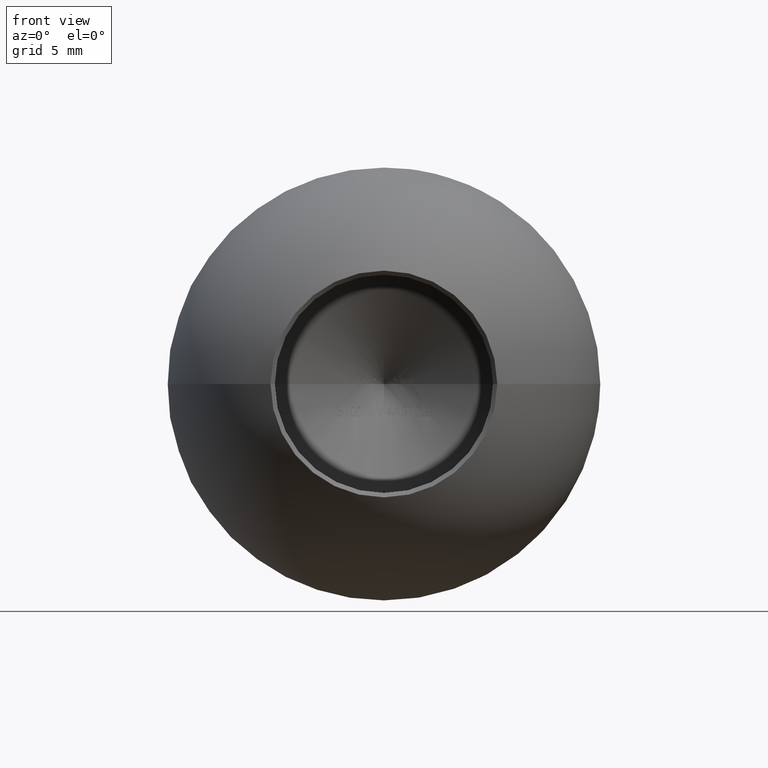
[diagram: clean part render]
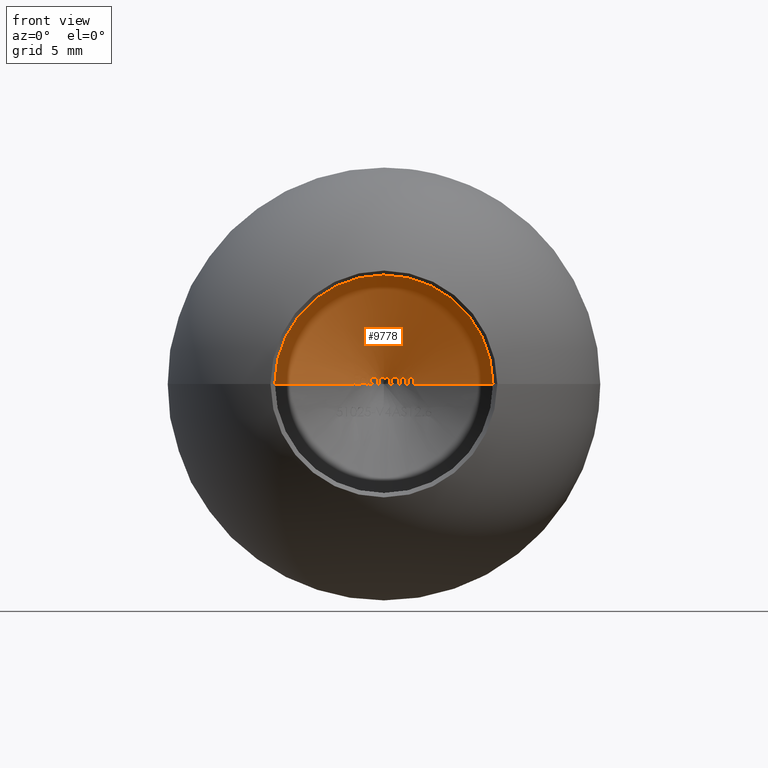
[diagram: same view with one face highlighted and labeled with its STEP entity id]
A machine part, front view. The second image highlights one B-rep face of the part: STEP entity #9778.
In plain terms, the highlighted conical surface has half-angle 59 deg.
Its self-contained STEP definition (entity closure, byte-faithful):
#4 = CARTESIAN_POINT ( 'NONE',  ( 0.7404582119147448100, 7.143712856000441900, 0.3628013175215684100 ) ) ;
#6 = CARTESIAN_POINT ( 'NONE',  ( -1.014236111111111600, 7.026576414036362000, 0.09996077056624082200 ) ) ;
#31 = FACE_OUTER_BOUND ( 'NONE', #9126, .T. ) ;
#36 = EDGE_CURVE ( 'NONE', #840, #6289, #13408, .T. ) ;
#38 = CARTESIAN_POINT ( 'NONE',  ( -0.1674813876457010000, 7.401505399091035100, 0.3579710547640196400 ) ) ;
#78 = ORIENTED_EDGE ( 'NONE', *, *, #739, .T. ) ;
#87 = CARTESIAN_POINT ( 'NONE',  ( 1.387366452991452900, 6.805329743145604100, 0.1288995907434543100 ) ) ;
#132 = CARTESIAN_POINT ( 'NONE',  ( -1.647123853676761400, 6.637202921936052200, 0.2577991452991468300 ) ) ;
#155 = LINE ( 'NONE', #6323, #7913 ) ;
#159 = CARTESIAN_POINT ( 'NONE',  ( -1.359464049011051700, 6.820538100220738400, 0.08558561667988146000 ) ) ;
#182 = CARTESIAN_POINT ( 'NONE',  ( 0.9870993589743581900, 7.016009732761441200, 0.3169487847222237100 ) ) ;
#183 = CARTESIAN_POINT ( 'NONE',  ( 0.7835737179487166600, 7.131472354437094400, 0.3151467347756424800 ) ) ;
#185 = VERTEX_POINT ( 'NONE', #3466 ) ;
#197 = EDGE_CURVE ( 'NONE', #3040, #3337, #2786, .T. ) ;
#214 = CARTESIAN_POINT ( 'NONE',  ( -1.323150783410401700, 6.817499670410935400, 0.3450018988909705500 ) ) ;
#234 = CARTESIAN_POINT ( 'NONE',  ( 0.08779943702463775800, 7.423223848220343900, 0.3485925733421037500 ) ) ;
#240 = EDGE_CURVE ( 'NONE', #2632, #185, #3183, .T. ) ;
#250 = CARTESIAN_POINT ( 'NONE',  ( -1.455208333333333700, 6.708550441508484700, 0.5291666666666681200 ) ) ;
#270 = VERTEX_POINT ( 'NONE', #10808 ) ;
#293 = CARTESIAN_POINT ( 'NONE',  ( -1.541323041725254800, 6.659922769611665000, 0.5291666666666681200 ) ) ;
#295 = VERTEX_POINT ( 'NONE', #3558 ) ;
#304 = CARTESIAN_POINT ( 'NONE',  ( 1.474668439244043000, 6.726686664693251500, 0.3612204724755960800 ) ) ;
#307 = CARTESIAN_POINT ( 'NONE',  ( 0.3290331196581186600, 7.441240564949753300, 0.07117610087406210700 ) ) ;
#381 = VERTEX_POINT ( 'NONE', #433 ) ;
#386 = CARTESIAN_POINT ( 'NONE',  ( -1.595458666473993400, 6.662159479214873100, 0.3120726495726510700 ) ) ;
#388 = B_SPLINE_CURVE_WITH_KNOTS ( 'NONE', 3,
 ( #7208, #912, #12803, #1223 ),
 .UNSPECIFIED., .F., .F.,
 ( 4, 4 ),
 ( 0.0008179509320228947500, 0.001013369868993847400 ),
 .UNSPECIFIED. ) ;
#433 = CARTESIAN_POINT ( 'NONE',  ( -0.2476228632478641700, 7.363036040711569400, 0.3866987179487193500 ) ) ;
#454 = CARTESIAN_POINT ( 'NONE',  ( 0.8310630341880328500, 7.139590559734950900, 1.518562030942718600E-015 ) ) ;
#494 = ORIENTED_EDGE ( 'NONE', *, *, #8735, .T. ) ;
#497 = ORIENTED_EDGE ( 'NONE', *, *, #1317, .T. ) ;
#506 = CARTESIAN_POINT ( 'NONE',  ( 1.176492429003842500, 6.894326940105582200, 0.3896581515268300300 ) ) ;
#598 = CARTESIAN_POINT ( 'NONE',  ( 1.387366452991452900, 6.805329743145581000, 1.518562030942718400E-015 ) ) ;
#628 = CARTESIAN_POINT ( 'NONE',  ( -1.316873170836183600, 6.845349488033548400, 0.1019429019742941500 ) ) ;
#634 = CARTESIAN_POINT ( 'NONE',  ( 2.682800769526733900E-015, -992.3610563910920100, 0.0000000000000000000 ) ) ;
#684 = CARTESIAN_POINT ( 'NONE',  ( -0.2001335470085479400, 7.389217955464715700, 0.3643981718122180100 ) ) ;
#718 = EDGE_CURVE ( 'NONE', #10622, #1459, #6929, .T. ) ;
#734 = ORIENTED_EDGE ( 'NONE', *, *, #1342, .T. ) ;
#735 = CARTESIAN_POINT ( 'NONE',  ( -1.342845219017094500, 6.809291979287142900, 0.3214009081196596000 ) ) ;
#739 = EDGE_CURVE ( 'NONE', #1045, #1482, #10375, .T. ) ;
#746 = CARTESIAN_POINT ( 'NONE',  ( 1.581987847222222000, 6.659427574427662800, 0.3934829059829074700 ) ) ;
#759 = CARTESIAN_POINT ( 'NONE',  ( -1.455208333333333700, 6.744686031475068500, 0.3120726495726510700 ) ) ;
#782 = CARTESIAN_POINT ( 'NONE',  ( 1.710145773918359600, 6.593808470353522500, 0.3183697774840327200 ) ) ;
#786 = CARTESIAN_POINT ( 'NONE',  ( 0.7994224748065328300, 7.105372951953271800, 0.3866987179487194100 ) ) ;
#836 = VERTEX_POINT ( 'NONE', #10303 ) ;
#840 = VERTEX_POINT ( 'NONE', #8206 ) ;
#846 = VECTOR ( 'NONE', #7357, 1000.000000000000100 ) ;
#848 = EDGE_CURVE ( 'NONE', #10722, #10261, #5889, .T. ) ;
#868 = DIRECTION ( 'NONE',  ( -0.8571673007021137800, -0.5150380749100518200, 1.049727191138620400E-016 ) ) ;
#877 = B_SPLINE_CURVE_WITH_KNOTS ( 'NONE', 3,
 ( #3943, #12709, #11748, #11345 ),
 .UNSPECIFIED., .F., .F.,
 ( 4, 4 ),
 ( 0.001311551210976975900, 0.001381203793247886100 ),
 .UNSPECIFIED. ) ;
#878 = EDGE_CURVE ( 'NONE', #836, #1250, #1313, .T. ) ;
#894 = CARTESIAN_POINT ( 'NONE',  ( -1.525415565481254200, 6.679080899702913000, 0.4748931623931638700 ) ) ;
#912 = CARTESIAN_POINT ( 'NONE',  ( 1.278819444444443600, 6.867443421048975000, 0.1320518482520008900 ) ) ;
#920 = CARTESIAN_POINT ( 'NONE',  ( 0.3290331196581186600, 7.426307378661667800, 0.1421242210431102300 ) ) ;
#927 = ORIENTED_EDGE ( 'NONE', *, *, #8265, .T. ) ;
#937 = VERTEX_POINT ( 'NONE', #7469 ) ;
#938 = CARTESIAN_POINT ( 'NONE',  ( 0.4240117521367508500, 7.358668712080991300, 0.1944093883547023700 ) ) ;
#979 = LINE ( 'NONE', #12825, #11890 ) ;
#987 = CARTESIAN_POINT ( 'NONE',  ( 0.7835737179487166600, 7.113912552411743000, 0.3866987179487194100 ) ) ;
#1009 = CARTESIAN_POINT ( 'NONE',  ( -1.042373142122130700, 7.008849209844624000, 0.1147362466499166900 ) ) ;
#1022 = CARTESIAN_POINT ( 'NONE',  ( 1.076997598257190900, 6.951285923672266200, 0.3871275609211924400 ) ) ;
#1045 = VERTEX_POINT ( 'NONE', #4500 ) ;
#1069 = CARTESIAN_POINT ( 'NONE',  ( -6.299999999999999800, 3.853521709034483800, 7.715274834628325400E-016 ) ) ;
#1073 = DIRECTION ( 'NONE',  ( 0.8571673007021137800, -0.5150380749100518200, 0.0000000000000000000 ) ) ;
#1108 = ORIENTED_EDGE ( 'NONE', *, *, #5313, .T. ) ;
#1126 = CARTESIAN_POINT ( 'NONE',  ( -0.1519536589145238400, 7.398568526059360600, 0.3701252838174325900 ) ) ;
#1136 = CARTESIAN_POINT ( 'NONE',  ( 0.3290331196581186600, 7.441240564949746200, 1.518562030942718800E-015 ) ) ;
#1201 = CARTESIAN_POINT ( 'NONE',  ( -1.322011995031399500, 6.844581531685651800, 0.03412153390940483200 ) ) ;
#1216 = CARTESIAN_POINT ( 'NONE',  ( -0.2001335470085479400, 7.377317734641488700, 0.3866987179487194100 ) ) ;
#1223 = CARTESIAN_POINT ( 'NONE',  ( 1.278819444444443600, 6.870551365894726800, 1.518562030942718600E-015 ) ) ;
#1250 = VERTEX_POINT ( 'NONE', #5459 ) ;
#1257 = CARTESIAN_POINT ( 'NONE',  ( -0.4036591880341899900, 7.232528101271822300, 0.5427350427350441400 ) ) ;
#1270 = CARTESIAN_POINT ( 'NONE',  ( -1.035966713408120300, 6.987916598006259900, 0.3173727964743604500 ) ) ;
#1297 = CARTESIAN_POINT ( 'NONE',  ( 0.04309207885258888000, 7.438319601841879300, 0.3311020319034414500 ) ) ;
#1313 = B_SPLINE_CURVE_WITH_KNOTS ( 'NONE', 3,
 ( #9497, #6386, #10684, #8465 ),
 .UNSPECIFIED., .F., .F.,
 ( 4, 4 ),
 ( 0.002125704251413528800, 0.002677126342135670200 ),
 .UNSPECIFIED. ) ;
#1317 = EDGE_CURVE ( 'NONE', #4908, #11819, #3602, .T. ) ;
#1342 = EDGE_CURVE ( 'NONE', #9891, #8377, #7499, .T. ) ;
#1359 = CARTESIAN_POINT ( 'NONE',  ( 0.7835737179487166600, 7.120228501920330200, 0.3629465405111128000 ) ) ;
#1458 = B_SPLINE_CURVE_WITH_KNOTS ( 'NONE', 3,
 ( #7992, #10306, #1730, #2920, #4813, #8079 ),
 .UNSPECIFIED., .F., .F.,
 ( 4, 2, 4 ),
 ( 0.0000000000000000000, 9.478947945274194300E-005, 0.0001895789589054838900 ),
 .UNSPECIFIED. ) ;
#1459 = VERTEX_POINT ( 'NONE', #5719 ) ;
#1461 = CARTESIAN_POINT ( 'NONE',  ( 1.726575854700854500, 6.601512172054502700, 1.518562030942718400E-015 ) ) ;
#1482 = VERTEX_POINT ( 'NONE', #7886 ) ;
#1516 = CARTESIAN_POINT ( 'NONE',  ( 1.235356144932154800, 6.866558846088312700, 0.3560914932666467400 ) ) ;
#1566 = EDGE_CURVE ( 'NONE', #836, #11407, #12654, .T. ) ;
#1589 = ORIENTED_EDGE ( 'NONE', *, *, #2296, .T. ) ;
#1615 = VECTOR ( 'NONE', #868, 1000.000000000000100 ) ;
#1676 = DIRECTION ( 'NONE',  ( 0.8571673007021137800, -0.5150380749100518200, 0.0000000000000000000 ) ) ;
#1692 = CARTESIAN_POINT ( 'NONE',  ( -1.339877136752137400, 6.826375838881838300, 0.1831730769230784100 ) ) ;
#1725 = CARTESIAN_POINT ( 'NONE',  ( -0.6096454098510568600, 7.204347550580799000, 0.3897251748211866800 ) ) ;
#1730 = CARTESIAN_POINT ( 'NONE',  ( -1.144205029093450000, 6.950908712519186000, 0.04702319559875476500 ) ) ;
#1762 = CARTESIAN_POINT ( 'NONE',  ( 1.717918690679695500, 6.591775739171025900, 0.2943356654103226300 ) ) ;
#1794 = CARTESIAN_POINT ( 'NONE',  ( -0.09430882788232901300, 7.396912850919220800, 0.3918519830906627100 ) ) ;
#1814 = B_SPLINE_CURVE_WITH_KNOTS ( 'NONE', 3,
 ( #5013, #11652, #3993, #3907, #9231, #10249, #8408, #1794, #4212, #3951 ),
 .UNSPECIFIED., .F., .F.,
 ( 4, 3, 3, 4 ),
 ( 0.0000000000000000000, 2.078541793869841500E-005, 4.165160414437703400E-005, 8.320017834670837600E-005 ),
 .UNSPECIFIED. ) ;
#1835 = ORIENTED_EDGE ( 'NONE', *, *, #4383, .T. ) ;
#1845 = CARTESIAN_POINT ( 'NONE',  ( 0.4969361190968364400, 7.340520172632195400, 0.03365518790540218700 ) ) ;
#1851 = CARTESIAN_POINT ( 'NONE',  ( 1.297815826754317900E-017, 7.638943608908091300, 0.0000000000000000000 ) ) ;
#1858 = CARTESIAN_POINT ( 'NONE',  ( -0.6574570863553700400, 7.185377035514994400, 0.3714457551093878200 ) ) ;
#1870 = AXIS2_PLACEMENT_3D ( 'NONE', #12713, #9542, #9495 ) ;
#1889 = CARTESIAN_POINT ( 'NONE',  ( 0.4273741730753166700, 7.367479383288690900, 0.1483415511614871700 ) ) ;
#1905 = CARTESIAN_POINT ( 'NONE',  ( 0.2798642881807406100, 7.361582417003110600, 0.3677408391487082000 ) ) ;
#1910 = CIRCLE ( 'NONE', #1870, 6.299999999999999800 ) ;
#1912 = CARTESIAN_POINT ( 'NONE',  ( -0.3561698717948737500, 7.424935159262465100, 0.09574007394243792800 ) ) ;
#1962 = CARTESIAN_POINT ( 'NONE',  ( 0.5743681984322194200, 7.222171424409472400, 0.3889075040730029500 ) ) ;
#1978 = VERTEX_POINT ( 'NONE', #13527 ) ;
#1981 = ORIENTED_EDGE ( 'NONE', *, *, #3154, .T. ) ;
#2011 = CARTESIAN_POINT ( 'NONE',  ( 1.403200868361992800, 6.764388862078099000, 0.3866987179487194100 ) ) ;
#2039 = LINE ( 'NONE', #5275, #3029 ) ;
#2089 = CARTESIAN_POINT ( 'NONE',  ( 1.105319173278443300, 6.934179587856412800, 0.3925490969725741700 ) ) ;
#2095 = CARTESIAN_POINT ( 'NONE',  ( 1.387366452991452900, 6.773553787197161400, 0.3866987179490150600 ) ) ;
#2154 = EDGE_CURVE ( 'NONE', #6289, #8561, #5118, .T. ) ;
#2159 = CARTESIAN_POINT ( 'NONE',  ( 1.278819444444443600, 6.861443226444649200, 0.1974834735576938000 ) ) ;
#2175 = CARTESIAN_POINT ( 'NONE',  ( -0.4036591880341899900, 7.232528101271822300, 0.5427350427350441400 ) ) ;
#2183 = EDGE_CURVE ( 'NONE', #13306, #3664, #3088, .T. ) ;
#2190 = CARTESIAN_POINT ( 'NONE',  ( -1.665518162393162700, 6.598313683075772900, 0.4748931623931638700 ) ) ;
#2221 = B_SPLINE_CURVE_WITH_KNOTS ( 'NONE', 3,
 ( #3574, #10875, #9868, #454 ),
 .UNSPECIFIED., .F., .F.,
 ( 4, 4 ),
 ( 0.0005154003043859488000, 0.0009040597208770841800 ),
 .UNSPECIFIED. ) ;
#2232 = CARTESIAN_POINT ( 'NONE',  ( -0.02079407405070101900, 7.407000241175902400, 0.3854581128389904500 ) ) ;
#2238 = CARTESIAN_POINT ( 'NONE',  ( 0.9870993589743581900, 7.001946035408981700, 0.3866987179487194100 ) ) ;
#2271 = ORIENTED_EDGE ( 'NONE', *, *, #12100, .F. ) ;
#2284 = B_SPLINE_CURVE_WITH_KNOTS ( 'NONE', 3,
 ( #6117, #7189, #8276, #6193, #13561, #735 ),
 .UNSPECIFIED., .F., .F.,
 ( 4, 2, 4 ),
 ( 0.0000000000000000000, 7.037804051329520200E-005, 0.0001407560810265903200 ),
 .UNSPECIFIED. ) ;
#2296 = EDGE_CURVE ( 'NONE', #9394, #3247, #3860, .T. ) ;
#2301 = CARTESIAN_POINT ( 'NONE',  ( -1.455208333333333700, 6.750951361136724700, 0.2577991452991468300 ) ) ;
#2306 = CARTESIAN_POINT ( 'NONE',  ( 0.7638143519097382300, 7.136808112322300200, 0.3404776028070310400 ) ) ;
#2321 = ORIENTED_EDGE ( 'NONE', *, *, #10913, .T. ) ;
#2332 = ORIENTED_EDGE ( 'NONE', *, *, #5520, .T. ) ;
#2351 = CARTESIAN_POINT ( 'NONE',  ( -0.9974127522193304600, 7.023633041432842300, 0.2329511510321150800 ) ) ;
#2352 = EDGE_CURVE ( 'NONE', #12972, #7255, #10616, .T. ) ;
#2379 = CARTESIAN_POINT ( 'NONE',  ( 0.7835737179487166600, 7.131472354437094400, 0.3151467347756424800 ) ) ;
#2396 = CARTESIAN_POINT ( 'NONE',  ( -1.455208333333333700, 6.749055887574153100, 0.2758832890618085300 ) ) ;
#2416 = CARTESIAN_POINT ( 'NONE',  ( -1.386712833582675300, 6.799630283070635900, 0.1694951814833219300 ) ) ;
#2463 = CARTESIAN_POINT ( 'NONE',  ( -0.5601195245726515700, 7.227644671059122700, 0.3934829059829074700 ) ) ;
#2472 = CARTESIAN_POINT ( 'NONE',  ( -1.161081443561828200, 6.932667159153584900, 0.1831730769230784100 ) ) ;
#2503 = ORIENTED_EDGE ( 'NONE', *, *, #13362, .T. ) ;
#2525 = ORIENTED_EDGE ( 'NONE', *, *, #10250, .T. ) ;
#2535 = CARTESIAN_POINT ( 'NONE',  ( 1.134231436965811100, 6.917583033462558500, 0.3934829059829074700 ) ) ;
#2536 = EDGE_CURVE ( 'NONE', #3664, #10530, #388, .T. ) ;
#2545 = EDGE_CURVE ( 'NONE', #7056, #2943, #3255, .T. ) ;
#2632 = VERTEX_POINT ( 'NONE', #13057 ) ;
#2666 = CARTESIAN_POINT ( 'NONE',  ( -1.078411163571265200, 6.955412637660751700, 0.3621396847870614300 ) ) ;
#2672 = B_SPLINE_CURVE_WITH_KNOTS ( 'NONE', 3,
 ( #6136, #2917, #5955, #11400, #7165, #9163, #1858, #1725, #6005, #2955 ),
 .UNSPECIFIED., .F., .F.,
 ( 4, 2, 2, 2, 4 ),
 ( 0.0000000000000000000, 8.155571166221211200E-005, 0.0001631114233244242200, 0.0002446671349866363500, 0.0003262228466488484500 ),
 .UNSPECIFIED. ) ;
#2695 = CARTESIAN_POINT ( 'NONE',  ( -0.2318840374973228900, 7.368135767812362700, 0.3866987179487194100 ) ) ;
#2713 = B_SPLINE_CURVE_WITH_KNOTS ( 'NONE', 3,
 ( #11657, #11520, #13654, #5326, #12656, #38, #7464, #6430, #1126, #8500 ),
 .UNSPECIFIED., .F., .F.,
 ( 4, 3, 3, 4 ),
 ( 0.0000000000000000000, 3.851311768730983700E-005, 5.820392503490826300E-005, 7.820939082748008900E-005 ),
 .UNSPECIFIED. ) ;
#2735 = B_SPLINE_CURVE_WITH_KNOTS ( 'NONE', 3,
 ( #11340, #12446, #1845, #4122, #8235, #1889, #6035, #938 ),
 .UNSPECIFIED., .F., .F.,
 ( 4, 2, 2, 4 ),
 ( 6.302875572045105500E-005, 0.0002006563166224373700, 0.0002694700970734309500, 0.0003382838775244245300 ),
 .UNSPECIFIED. ) ;
#2738 = CARTESIAN_POINT ( 'NONE',  ( -0.2476228632478641700, 7.363036040711569400, 0.3866987179487193500 ) ) ;
#2758 = CARTESIAN_POINT ( 'NONE',  ( -1.244739828179894500, 6.890504303782363700, 0.04667709270720432600 ) ) ;
#2786 = B_SPLINE_CURVE_WITH_KNOTS ( 'NONE', 3,
 ( #9755, #6565, #8632, #2232, #5401, #11781, #9664, #7495, #8723, #1297, #12738, #9706, #7539 ),
 .UNSPECIFIED., .F., .F.,
 ( 4, 3, 3, 3, 4 ),
 ( 2.710505431213761100E-020, 4.734074943008627100E-005, 9.491457183015314100E-005, 0.0001384496987312319900, 0.0001759050593100019700 ),
 .UNSPECIFIED. ) ;
#2810 = EDGE_CURVE ( 'NONE', #10245, #11375, #12078, .T. ) ;
#2823 = CARTESIAN_POINT ( 'NONE',  ( -0.3720604788414909600, 7.243645893630970000, 0.5427350427350441400 ) ) ;
#2845 = CARTESIAN_POINT ( 'NONE',  ( -1.306457583537957300, 6.852099597814013300, 0.08962736623736300400 ) ) ;
#2889 = B_SPLINE_CURVE_WITH_KNOTS ( 'NONE', 3,
 ( #11121, #5848, #10012, #4784 ),
 .UNSPECIFIED., .F., .F.,
 ( 4, 4 ),
 ( 0.0005364241826316960900, 0.0005907792436031413900 ),
 .UNSPECIFIED. ) ;
#2915 = CARTESIAN_POINT ( 'NONE',  ( 1.624168930705930400, 6.635385817831892300, 0.3896531574412153100 ) ) ;
#2917 = CARTESIAN_POINT ( 'NONE',  ( -0.7624552855048855000, 7.162124430996372300, 0.2215941953324585800 ) ) ;
#2920 = CARTESIAN_POINT ( 'NONE',  ( -1.093929285720572700, 6.980244349087751500, 0.07284698006150414100 ) ) ;
#2937 = CARTESIAN_POINT ( 'NONE',  ( -0.2476228632478641700, 7.490156782011603700, 1.518562030942718800E-015 ) ) ;
#2943 = VERTEX_POINT ( 'NONE', #1257 ) ;
#2947 = ORIENTED_EDGE ( 'NONE', *, *, #13477, .T. ) ;
#2955 = CARTESIAN_POINT ( 'NONE',  ( -0.5601195245726515700, 7.227644671059122700, 0.3934829059829074700 ) ) ;
#2963 = VERTEX_POINT ( 'NONE', #1461 ) ;
#3018 = CARTESIAN_POINT ( 'NONE',  ( 0.5052355336211179500, 7.267770475027596400, 0.3554560686072433800 ) ) ;
#3029 = VECTOR ( 'NONE', #1073, 1000.000000000000100 ) ;
#3032 = CARTESIAN_POINT ( 'NONE',  ( -0.8581997863247867700, 7.028820552533527000, 0.5427350427350441400 ) ) ;
#3035 = CARTESIAN_POINT ( 'NONE',  ( -1.665518162393162700, 6.638199334850897400, 1.518562030942718800E-015 ) ) ;
#3040 = VERTEX_POINT ( 'NONE', #10832 ) ;
#3045 = ORIENTED_EDGE ( 'NONE', *, *, #2536, .T. ) ;
#3066 = CARTESIAN_POINT ( 'NONE',  ( 1.434855769230769100, 6.746034205965205600, 0.3866987179487194100 ) ) ;
#3088 = B_SPLINE_CURVE_WITH_KNOTS ( 'NONE', 3,
 ( #2535, #13266, #506, #4788, #1516, #12088, #7921, #12138, #6833, #6980 ),
 .UNSPECIFIED., .F., .F.,
 ( 4, 2, 2, 2, 4 ),
 ( 0.0000000000000000000, 7.191098164294536400E-005, 0.0001438219632858907300, 0.0002157329449288360800, 0.0002876439265717814600 ),
 .UNSPECIFIED. ) ;
#3093 = CARTESIAN_POINT ( 'NONE',  ( -0.4036591880341899900, 7.332447085998891700, 0.3118606436965827300 ) ) ;
#3106 = CARTESIAN_POINT ( 'NONE',  ( -1.455208333333333700, 6.712263562026295800, 0.5110838700841403600 ) ) ;
#3139 = CARTESIAN_POINT ( 'NONE',  ( 0.3290331196581186600, 7.404579434647478900, 0.2094618055555570500 ) ) ;
#3154 = EDGE_CURVE ( 'NONE', #937, #4084, #8001, .T. ) ;
#3178 = CARTESIAN_POINT ( 'NONE',  ( 1.387366452991452900, 6.805329743145581000, 1.518562030942718400E-015 ) ) ;
#3183 = B_SPLINE_CURVE_WITH_KNOTS ( 'NONE', 3,
 ( #6618, #10668, #1201, #159, #12926, #8678, #2416, #6470 ),
 .UNSPECIFIED., .F., .F.,
 ( 4, 2, 2, 4 ),
 ( 6.608354809621549200E-005, 0.0002001519546335679700, 0.0002671861579022445400, 0.0003342203611709210600 ),
 .UNSPECIFIED. ) ;
#3185 = EDGE_CURVE ( 'NONE', #381, #10442, #10055, .T. ) ;
#3210 = CARTESIAN_POINT ( 'NONE',  ( -1.014236111111111600, 7.026576414036362000, 0.09996077056624082200 ) ) ;
#3219 = CARTESIAN_POINT ( 'NONE',  ( -0.4036591880341899900, 7.332447085998891700, 0.3118606436965827300 ) ) ;
#3247 = VERTEX_POINT ( 'NONE', #4798 ) ;
#3255 = B_SPLINE_CURVE_WITH_KNOTS ( 'NONE', 3,
 ( #3093, #4282, #11628, #2175 ),
 .UNSPECIFIED., .F., .F.,
 ( 4, 4 ),
 ( 0.0002458175524693145000, 0.0004961746075296698500 ),
 .UNSPECIFIED. ) ;
#3309 = CARTESIAN_POINT ( 'NONE',  ( -0.2001335470085479400, 7.412419058963142700, 0.3194928552350442300 ) ) ;
#3337 = VERTEX_POINT ( 'NONE', #7736 ) ;
#3341 = CARTESIAN_POINT ( 'NONE',  ( 0.8310630341880328500, 7.139590559734950900, 1.518562030942718600E-015 ) ) ;
#3347 = CARTESIAN_POINT ( 'NONE',  ( -0.9938835470085475300, 7.031700632261225400, 0.1831730769230784100 ) ) ;
#3367 = CARTESIAN_POINT ( 'NONE',  ( 0.1363464533767588500, 7.395082240584302200, 0.3826987125910118500 ) ) ;
#3372 = CARTESIAN_POINT ( 'NONE',  ( 1.297815826754317900E-017, 7.638943608908091300, 0.0000000000000000000 ) ) ;
#3376 = VERTEX_POINT ( 'NONE', #9913 ) ;
#3402 = CARTESIAN_POINT ( 'NONE',  ( -1.455208333333333700, 6.750951361136724700, 0.2577991452991468300 ) ) ;
#3425 = CARTESIAN_POINT ( 'NONE',  ( -1.627233092318847600, 6.610916219295679000, 0.5291666666666681200 ) ) ;
#3431 = ORIENTED_EDGE ( 'NONE', *, *, #6409, .T. ) ;
#3440 = CARTESIAN_POINT ( 'NONE',  ( -1.011582755905474200, 7.008551637960663600, 0.2789898398214007400 ) ) ;
#3444 = ORIENTED_EDGE ( 'NONE', *, *, #7221, .T. ) ;
#3466 = CARTESIAN_POINT ( 'NONE',  ( -1.387366452991453600, 6.797360958483527500, 0.1922893295940185900 ) ) ;
#3519 = CARTESIAN_POINT ( 'NONE',  ( -1.280300526175800700, 6.861843182106328600, 0.1831730769230784100 ) ) ;
#3539 = EDGE_CURVE ( 'NONE', #6114, #10029, #12894, .T. ) ;
#3541 = B_SPLINE_CURVE_WITH_KNOTS ( 'NONE', 3,
 ( #4552, #12303, #11424, #5086, #12476, #3018, #13512, #1962, #13344, #3942 ),
 .UNSPECIFIED., .F., .F.,
 ( 4, 2, 2, 2, 4 ),
 ( 0.0000000000000000000, 8.887169550605892400E-005, 0.0001777433910121178500, 0.0002666150865181767900, 0.0003554867820242357000 ),
 .UNSPECIFIED. ) ;
#3558 = CARTESIAN_POINT ( 'NONE',  ( -0.2476228632478641700, 7.490156782011603700, 1.518562030942718800E-015 ) ) ;
#3574 = CARTESIAN_POINT ( 'NONE',  ( 0.8310630341880329600, 7.088179653979388200, 0.3866987179487194100 ) ) ;
#3602 = B_SPLINE_CURVE_WITH_KNOTS ( 'NONE', 3,
 ( #5433, #12861, #4331, #4, #2306, #183 ),
 .UNSPECIFIED., .F., .F.,
 ( 4, 2, 4 ),
 ( 0.0000000000000000000, 9.582566416305954900E-005, 0.0001916513283261191000 ),
 .UNSPECIFIED. ) ;
#3615 = DIRECTION ( 'NONE',  ( 1.000000000000000000, 0.0000000000000000000, 0.0000000000000000000 ) ) ;
#3636 = CARTESIAN_POINT ( 'NONE',  ( -0.2001335470085479400, 7.377317734641488700, 0.3866987179487194100 ) ) ;
#3647 = CARTESIAN_POINT ( 'NONE',  ( -1.665518162393162700, 6.598313683075772900, 0.4748931623931638700 ) ) ;
#3662 = B_SPLINE_CURVE_WITH_KNOTS ( 'NONE', 3,
 ( #2095, #2011, #9321, #3066 ),
 .UNSPECIFIED., .F., .F.,
 ( 4, 4 ),
 ( 0.0007803824674425009800, 0.0008352642587977255000 ),
 .UNSPECIFIED. ) ;
#3664 = VERTEX_POINT ( 'NONE', #2159 ) ;
#3801 = EDGE_CURVE ( 'NONE', #11622, #2963, #9121, .T. ) ;
#3835 = ORIENTED_EDGE ( 'NONE', *, *, #11354, .T. ) ;
#3842 = B_SPLINE_CURVE_WITH_KNOTS ( 'NONE', 3,
 ( #6181, #1009, #5247, #6 ),
 .UNSPECIFIED., .F., .F.,
 ( 4, 4 ),
 ( 2.589674448285716900E-007, 5.484452315193676800E-005 ),
 .UNSPECIFIED. ) ;
#3860 = B_SPLINE_CURVE_WITH_KNOTS ( 'NONE', 3,
 ( #8805, #12810, #4422, #182 ),
 .UNSPECIFIED., .F., .F.,
 ( 4, 4 ),
 ( 0.001041216609601242500, 0.001111618583288206600 ),
 .UNSPECIFIED. ) ;
#3880 = CARTESIAN_POINT ( 'NONE',  ( -0.6548595648391208900, 7.245464285402749600, 0.01033408935832871500 ) ) ;
#3899 = CARTESIAN_POINT ( 'NONE',  ( -0.2001335470085479400, 7.400954803185956400, 0.3420068474148618100 ) ) ;
#3907 = CARTESIAN_POINT ( 'NONE',  ( -0.1275474555417485900, 7.396749805424926500, 0.3823658772373891300 ) ) ;
#3925 = CARTESIAN_POINT ( 'NONE',  ( 0.2962337679600839900, 7.363073979992667400, 0.3513793890083772300 ) ) ;
#3942 = CARTESIAN_POINT ( 'NONE',  ( 0.6271133814102550800, 7.194103807568870600, 0.3934829059829074700 ) ) ;
#3943 = CARTESIAN_POINT ( 'NONE',  ( 1.434855769230769100, 6.746034205965205600, 0.3866987179487194100 ) ) ;
#3944 = CARTESIAN_POINT ( 'NONE',  ( -0.2476228632478642300, 7.471999416890744400, 0.1355300878755390200 ) ) ;
#3951 = CARTESIAN_POINT ( 'NONE',  ( -0.06678185096153942100, 7.399134262126953100, 0.3934829059829075300 ) ) ;
#3972 = ORIENTED_EDGE ( 'NONE', *, *, #2810, .T. ) ;
#3980 = CARTESIAN_POINT ( 'NONE',  ( 0.6271133814102550800, 7.194103807568870600, 0.3934829059829074700 ) ) ;
#3989 = CARTESIAN_POINT ( 'NONE',  ( -1.665518162393162700, 6.626282001292621800, 0.2577991452991468300 ) ) ;
#3993 = CARTESIAN_POINT ( 'NONE',  ( -0.1339977726762327800, 7.396960041084664500, 0.3798453727161571500 ) ) ;
#4014 = EDGE_CURVE ( 'NONE', #6767, #11828, #2713, .T. ) ;
#4035 = CARTESIAN_POINT ( 'NONE',  ( -1.135927483978443500, 6.956409517720567600, -8.253788173235269200E-013 ) ) ;
#4048 = CARTESIAN_POINT ( 'NONE',  ( 0.3282098184729226300, 7.375096397490141300, 0.2946327035781483600 ) ) ;
#4084 = VERTEX_POINT ( 'NONE', #3347 ) ;
#4109 = EDGE_CURVE ( 'NONE', #270, #12304, #4111, .T. ) ;
#4111 = B_SPLINE_CURVE_WITH_KNOTS ( 'NONE', 3,
 ( #10819, #214, #12895, #4453, #6576, #4361 ),
 .UNSPECIFIED., .F., .F.,
 ( 4, 2, 4 ),
 ( 0.0000000000000000000, 9.447378481608877300E-005, 0.0001889475696321775500 ),
 .UNSPECIFIED. ) ;
#4122 = CARTESIAN_POINT ( 'NONE',  ( 0.4546817830302649600, 7.361303112048944700, 0.08441678584333109400 ) ) ;
#4212 = CARTESIAN_POINT ( 'NONE',  ( -0.08047929578035885300, 7.398059262602458800, 0.3929728620779930900 ) ) ;
#4282 = CARTESIAN_POINT ( 'NONE',  ( -0.4036591880341899900, 7.303607994122214300, 0.3903659621954281300 ) ) ;
#4305 = DIRECTION ( 'NONE',  ( 0.8571673007021137800, -0.5150380749100518200, 0.0000000000000000000 ) ) ;
#4328 = CARTESIAN_POINT ( 'NONE',  ( -1.583178196075708500, 6.675163208545141600, 0.2577991452991468300 ) ) ;
#4331 = CARTESIAN_POINT ( 'NONE',  ( 0.6849315715523673900, 7.165994133003538400, 0.3886134361682452300 ) ) ;
#4340 = CARTESIAN_POINT ( 'NONE',  ( 0.07017800241384850000, 7.439153997968878300, 0.3251411267087946400 ) ) ;
#4361 = CARTESIAN_POINT ( 'NONE',  ( -1.191685029380342500, 6.884883399818425800, 0.3934829059829074700 ) ) ;
#4371 = CARTESIAN_POINT ( 'NONE',  ( -1.665518162393162700, 6.626282001292621800, 0.2577991452991468300 ) ) ;
#4373 = CARTESIAN_POINT ( 'NONE',  ( -1.191685029380342500, 6.884883399818425800, 0.3934829059829074700 ) ) ;
#4383 = EDGE_CURVE ( 'NONE', #12304, #937, #8922, .T. ) ;
#4422 = CARTESIAN_POINT ( 'NONE',  ( 0.9870993589743581900, 7.011733588637183900, 0.3402274304456516800 ) ) ;
#4453 = CARTESIAN_POINT ( 'NONE',  ( -1.247535108924801900, 6.853887971480281400, 0.3886972820191100800 ) ) ;
#4462 = VERTEX_POINT ( 'NONE', #13205 ) ;
#4479 = EDGE_CURVE ( 'NONE', #3376, #6292, #877, .T. ) ;
#4485 = CARTESIAN_POINT ( 'NONE',  ( 1.726575854700854500, 6.594748133060877900, 0.1974834735576938000 ) ) ;
#4500 = CARTESIAN_POINT ( 'NONE',  ( -0.6153909450648297200, 7.269179424699820500, -1.685075910317813900E-012 ) ) ;
#4508 = EDGE_CURVE ( 'NONE', #8734, #8422, #9943, .T. ) ;
#4551 = ORIENTED_EDGE ( 'NONE', *, *, #5886, .T. ) ;
#4552 = CARTESIAN_POINT ( 'NONE',  ( 0.4240117521367508500, 7.358668712080991300, 0.1944093883547023700 ) ) ;
#4560 = CARTESIAN_POINT ( 'NONE',  ( 1.726575854700854500, 6.594748133060877900, 0.1974834735576938000 ) ) ;
#4591 = CARTESIAN_POINT ( 'NONE',  ( 0.1981194911858965000, 7.374237308560639200, 0.3934829059829074700 ) ) ;
#4650 = B_SPLINE_CURVE_WITH_KNOTS ( 'NONE', 3,
 ( #8395, #7351, #11598, #1022, #2089, #9478 ),
 .UNSPECIFIED., .F., .F.,
 ( 4, 2, 4 ),
 ( 0.0000000000000000000, 9.862340729945649900E-005, 0.0001972468145989130000 ),
 .UNSPECIFIED. ) ;
#4657 = EDGE_CURVE ( 'NONE', #10549, #12969, #11530, .T. ) ;
#4658 = ORIENTED_EDGE ( 'NONE', *, *, #13189, .T. ) ;
#4662 = B_SPLINE_CURVE_WITH_KNOTS ( 'NONE', 3,
 ( #746, #11223, #2915, #8122, #7200, #782, #1762, #12369, #13366, #12280 ),
 .UNSPECIFIED., .F., .F.,
 ( 4, 2, 2, 2, 4 ),
 ( 0.0000000000000000000, 7.238617317193097200E-005, 0.0001447723463438619400, 0.0002171585195157929200, 0.0002895446926877238900 ),
 .UNSPECIFIED. ) ;
#4677 = ORIENTED_EDGE ( 'NONE', *, *, #36, .T. ) ;
#4682 = B_SPLINE_CURVE_WITH_KNOTS ( 'NONE', 3,
 ( #12799, #9592, #9543, #7602, #12899, #3219 ),
 .UNSPECIFIED., .F., .F.,
 ( 4, 2, 4 ),
 ( 0.0000000000000000000, 0.0001050706478123608900, 0.0002101412956247217800 ),
 .UNSPECIFIED. ) ;
#4712 = CARTESIAN_POINT ( 'NONE',  ( -0.8581997863247867700, 7.028820552533527000, 0.5427350427350441400 ) ) ;
#4740 = CARTESIAN_POINT ( 'NONE',  ( -0.8581997863247866600, 7.080514541373383400, 0.3669900796485999800 ) ) ;
#4781 = CARTESIAN_POINT ( 'NONE',  ( -0.8581997863247867700, 7.123285154047662700, 1.518562030942718400E-015 ) ) ;
#4784 = CARTESIAN_POINT ( 'NONE',  ( 0.9870993589743581900, 7.001946035408981700, 0.3866987179487194100 ) ) ;
#4788 = CARTESIAN_POINT ( 'NONE',  ( 1.216844166198804300, 6.874636709811285100, 0.3708808937965550900 ) ) ;
#4798 = CARTESIAN_POINT ( 'NONE',  ( 0.9870993589743581900, 7.016009732761441200, 0.3169487847222237100 ) ) ;
#4811 = CARTESIAN_POINT ( 'NONE',  ( 0.9396100427350418900, 7.074368936985805200, 1.518562030942718600E-015 ) ) ;
#4813 = CARTESIAN_POINT ( 'NONE',  ( -1.073752915113378000, 6.991385832206400000, 0.09637610866972640100 ) ) ;
#4821 = CARTESIAN_POINT ( 'NONE',  ( -1.331204033479626900, 6.835114449126909800, 0.1326460330122388200 ) ) ;
#4908 = VERTEX_POINT ( 'NONE', #3980 ) ;
#4917 = CARTESIAN_POINT ( 'NONE',  ( -1.713007478632478900, 6.609664874898145500, 0.1764526653900482800 ) ) ;
#4926 = B_SPLINE_CURVE_WITH_KNOTS ( 'NONE', 3,
 ( #9669, #3425, #293, #250 ),
 .UNSPECIFIED., .F., .F.,
 ( 4, 4 ),
 ( 0.001820118928385211300, 0.002116819950225084600 ),
 .UNSPECIFIED. ) ;
#4941 = CARTESIAN_POINT ( 'NONE',  ( -0.7625839456207324000, 7.169582864328090100, 0.1708018247460703600 ) ) ;
#4966 = LINE ( 'NONE', #11914, #7933 ) ;
#5007 = CARTESIAN_POINT ( 'NONE',  ( -0.2476228632478641700, 7.423664502820274800, 0.2637047526550470600 ) ) ;
#5013 = CARTESIAN_POINT ( 'NONE',  ( -0.1464960603632488000, 7.397668598493759800, 0.3738723624465826700 ) ) ;
#5059 = EDGE_CURVE ( 'NONE', #3337, #10549, #11368, .T. ) ;
#5063 = CARTESIAN_POINT ( 'NONE',  ( -1.665518162393162700, 6.626282001292621800, 0.2577991452991468300 ) ) ;
#5086 = CARTESIAN_POINT ( 'NONE',  ( 0.4520611773437093200, 7.313205570760208800, 0.2995832499472551600 ) ) ;
#5100 = ORIENTED_EDGE ( 'NONE', *, *, #2183, .T. ) ;
#5106 = ORIENTED_EDGE ( 'NONE', *, *, #4479, .T. ) ;
#5118 = B_SPLINE_CURVE_WITH_KNOTS ( 'NONE', 3,
 ( #10120, #12228, #5891, #5707 ),
 .UNSPECIFIED., .F., .F.,
 ( 4, 4 ),
 ( 0.001438064310702183300, 0.001600571451680028700 ),
 .UNSPECIFIED. ) ;
#5146 = CARTESIAN_POINT ( 'NONE',  ( -0.8898808152440167400, 7.012668351763412700, 0.5427350427350441400 ) ) ;
#5232 = CARTESIAN_POINT ( 'NONE',  ( 0.8310630341880329600, 7.088179653979388200, 0.3866987179487194100 ) ) ;
#5247 = CARTESIAN_POINT ( 'NONE',  ( -1.028310549493973000, 7.017724842908799100, 0.1073516188627685600 ) ) ;
#5275 = CARTESIAN_POINT ( 'NONE',  ( 1.297815826754317900E-017, 7.638943608908091300, 0.0000000000000000000 ) ) ;
#5287 = CARTESIAN_POINT ( 'NONE',  ( 1.387366452991452900, 6.794081282236186700, 0.2594575857556727400 ) ) ;
#5313 = EDGE_CURVE ( 'NONE', #10904, #7106, #13386, .T. ) ;
#5326 = CARTESIAN_POINT ( 'NONE',  ( -0.1765711993143906900, 7.404047837877384600, 0.3487844694389350400 ) ) ;
#5334 = B_SPLINE_CURVE_WITH_KNOTS ( 'NONE', 3,
 ( #8157, #7153, #2823, #5993 ),
 .UNSPECIFIED., .F., .F.,
 ( 4, 4 ),
 ( 0.0006845624857008327400, 0.0007345577696191901500 ),
 .UNSPECIFIED. ) ;
#5401 = CARTESIAN_POINT ( 'NONE',  ( -0.006280716957646028900, 7.410644214753730800, 0.3801676474007160700 ) ) ;
#5433 = CARTESIAN_POINT ( 'NONE',  ( 0.6271133814102550800, 7.194103807568870600, 0.3934829059829074700 ) ) ;
#5434 = ORIENTED_EDGE ( 'NONE', *, *, #11593, .F. ) ;
#5459 = CARTESIAN_POINT ( 'NONE',  ( -0.9056891025641030700, 7.004520697607072900, 0.5427350427350441400 ) ) ;
#5465 = CARTESIAN_POINT ( 'NONE',  ( 1.453571182216306700, 6.741995569571734000, 0.3403741379040733900 ) ) ;
#5468 = LINE ( 'NONE', #10333, #5656 ) ;
#5487 = B_SPLINE_CURVE_WITH_KNOTS ( 'NONE', 3,
 ( #2301, #9730, #4328, #132, #8509, #12854, #4371 ),
 .UNSPECIFIED., .F., .F.,
 ( 4, 3, 4 ),
 ( 0.0007162013952512295000, 0.0009392918928952126000, 0.0009606836205222013800 ),
 .UNSPECIFIED. ) ;
#5505 = CARTESIAN_POINT ( 'NONE',  ( 0.7835737179487166600, 7.113912552411743000, 0.3866987179487194100 ) ) ;
#5520 = EDGE_CURVE ( 'NONE', #1978, #11435, #1910, .T. ) ;
#5553 = ORIENTED_EDGE ( 'NONE', *, *, #2154, .T. ) ;
#5645 = CARTESIAN_POINT ( 'NONE',  ( -1.161648106492325000, 6.902166684084584800, 0.3927113657888047200 ) ) ;
#5656 = VECTOR ( 'NONE', #4305, 1000.000000000000100 ) ;
#5707 = CARTESIAN_POINT ( 'NONE',  ( -1.665518162393162700, 6.620783545738905000, 0.3120726495726510700 ) ) ;
#5719 = CARTESIAN_POINT ( 'NONE',  ( 0.9396100427350418900, 7.028425774192061000, 0.3866987179487194100 ) ) ;
#5780 = ORIENTED_EDGE ( 'NONE', *, *, #197, .T. ) ;
#5781 = AXIS2_PLACEMENT_3D ( 'NONE', #634, #12214, #3615 ) ;
#5848 = CARTESIAN_POINT ( 'NONE',  ( 0.9554523473766654000, 7.019623089684900600, 0.3866987179487194100 ) ) ;
#5876 = CARTESIAN_POINT ( 'NONE',  ( -1.260190480245033200, 6.881102238759646100, 0.05255317615723741100 ) ) ;
#5886 = EDGE_CURVE ( 'NONE', #10261, #3376, #3662, .T. ) ;
#5889 = B_SPLINE_CURVE_WITH_KNOTS ( 'NONE', 3,
 ( #3178, #87, #5287, #11661 ),
 .UNSPECIFIED., .F., .F.,
 ( 4, 4 ),
 ( 0.0005668269210383704500, 0.0009524263837788115000 ),
 .UNSPECIFIED. ) ;
#5891 = CARTESIAN_POINT ( 'NONE',  ( -1.665518162393162700, 6.614775367685734200, 0.3663671276413243400 ) ) ;
#5927 = ORIENTED_EDGE ( 'NONE', *, *, #7020, .T. ) ;
#5955 = CARTESIAN_POINT ( 'NONE',  ( -0.7579895014815112300, 7.159820336256061100, 0.2490537826473108500 ) ) ;
#5961 = EDGE_CURVE ( 'NONE', #8561, #9891, #12224, .T. ) ;
#5967 = CARTESIAN_POINT ( 'NONE',  ( -1.035966713408120300, 6.987916598006259900, 0.3173727964743604500 ) ) ;
#5993 = CARTESIAN_POINT ( 'NONE',  ( -0.3561698717948736400, 7.248884487273277200, 0.5427350427350441400 ) ) ;
#6005 = CARTESIAN_POINT ( 'NONE',  ( -0.5847422711532502800, 7.215782217653662100, 0.3927772616629359700 ) ) ;
#6015 = CARTESIAN_POINT ( 'NONE',  ( -0.3561698717948735800, 7.399983680240848300, 0.1904863037396188100 ) ) ;
#6029 = ORIENTED_EDGE ( 'NONE', *, *, #878, .T. ) ;
#6035 = CARTESIAN_POINT ( 'NONE',  ( 0.4246267918715371200, 7.364039070848139800, 0.1716231324943733600 ) ) ;
#6075 = CARTESIAN_POINT ( 'NONE',  ( -1.135927483978443500, 6.956409517720567600, -8.253788173235269200E-013 ) ) ;
#6098 = CARTESIAN_POINT ( 'NONE',  ( -0.3561698717948737500, 7.424935159262458000, 1.518562030942718800E-015 ) ) ;
#6106 = ORIENTED_EDGE ( 'NONE', *, *, #6981, .T. ) ;
#6108 = CARTESIAN_POINT ( 'NONE',  ( -1.339877136752137400, 6.826375838881838300, 0.1831730769230784100 ) ) ;
#6114 = VERTEX_POINT ( 'NONE', #10432 ) ;
#6117 = CARTESIAN_POINT ( 'NONE',  ( -1.387366452991453600, 6.797360958483527500, 0.1922893295940185900 ) ) ;
#6118 = LINE ( 'NONE', #13254, #10270 ) ;
#6136 = CARTESIAN_POINT ( 'NONE',  ( -0.7632211538461557400, 7.165710446724187200, 0.1944093883547023700 ) ) ;
#6138 = CARTESIAN_POINT ( 'NONE',  ( 0.3290331196581186600, 7.404579434647478900, 0.2094618055555570500 ) ) ;
#6181 = CARTESIAN_POINT ( 'NONE',  ( -1.056425280448718600, 6.999952553332283500, 0.1221153846153861500 ) ) ;
#6193 = CARTESIAN_POINT ( 'NONE',  ( -1.368528184240386700, 6.799360611615248300, 0.2830268074333318100 ) ) ;
#6204 = EDGE_CURVE ( 'NONE', #11101, #4462, #3842, .T. ) ;
#6229 = EDGE_CURVE ( 'NONE', #12969, #10061, #7305, .T. ) ;
#6281 = CARTESIAN_POINT ( 'NONE',  ( -1.455208333333333700, 6.719184214772062600, 0.4748931623931638700 ) ) ;
#6289 = VERTEX_POINT ( 'NONE', #3647 ) ;
#6291 = CONICAL_SURFACE ( 'NONE', #5781, 1664.279482350528300, 1.029744258676657200 ) ;
#6292 = VERTEX_POINT ( 'NONE', #10089 ) ;
#6323 = CARTESIAN_POINT ( 'NONE',  ( 1.297815826754317900E-017, 7.638943608908091300, 0.0000000000000000000 ) ) ;
#6332 = B_SPLINE_CURVE_WITH_KNOTS ( 'NONE', 3,
 ( #1692, #7954, #13290, #4821, #8090, #628, #2845, #11281, #7011, #10232, #5876, #2758, #10144, #10103, #11497, #7995 ),
 .UNSPECIFIED., .F., .F.,
 ( 4, 3, 3, 3, 3, 4 ),
 ( 0.0000000000000000000, 5.200546313377871100E-005, 0.0001044816825350095100, 0.0001518414543448357900, 0.0002073250983755163500, 0.0002424756323301410500 ),
 .UNSPECIFIED. ) ;
#6386 = CARTESIAN_POINT ( 'NONE',  ( -0.9056891025641030700, 7.094750694094912500, 0.1850533202026533900 ) ) ;
#6409 = EDGE_CURVE ( 'NONE', #1482, #12698, #2672, .T. ) ;
#6430 = CARTESIAN_POINT ( 'NONE',  ( -0.1574265256352360400, 7.399388103498227000, 0.3663451991440791500 ) ) ;
#6470 = CARTESIAN_POINT ( 'NONE',  ( -1.387366452991453600, 6.797360958483527500, 0.1922893295940185900 ) ) ;
#6523 = CARTESIAN_POINT ( 'NONE',  ( 1.134231436965811100, 6.917583033462558500, 0.3934829059829074700 ) ) ;
#6560 = DIRECTION ( 'NONE',  ( 0.8571673007021137800, -0.5150380749100518200, 0.0000000000000000000 ) ) ;
#6561 = ORIENTED_EDGE ( 'NONE', *, *, #12236, .T. ) ;
#6565 = CARTESIAN_POINT ( 'NONE',  ( -0.05112407260770947300, 7.401023192460484300, 0.3929516778922428900 ) ) ;
#6576 = CARTESIAN_POINT ( 'NONE',  ( -1.219391340500215700, 6.869223959653177200, 0.3926934351310477600 ) ) ;
#6594 = CARTESIAN_POINT ( 'NONE',  ( -1.455208333333333700, 6.746966240767278600, 0.2939745009649717400 ) ) ;
#6618 = CARTESIAN_POINT ( 'NONE',  ( -1.249353555073599700, 6.888256258422294400, 2.604009884579610800E-012 ) ) ;
#6621 = LINE ( 'NONE', #11605, #846 ) ;
#6680 = CARTESIAN_POINT ( 'NONE',  ( -1.198787226228633000, 6.918224453015073800, 0.04070512820512971900 ) ) ;
#6764 = CARTESIAN_POINT ( 'NONE',  ( -1.455208333333333700, 6.708550441508484700, 0.5291666666666681200 ) ) ;
#6767 = VERTEX_POINT ( 'NONE', #3309 ) ;
#6808 = EDGE_CURVE ( 'NONE', #12698, #7056, #4682, .T. ) ;
#6823 = CARTESIAN_POINT ( 'NONE',  ( -0.4036591880341899900, 7.332447085998891700, 0.3118606436965827300 ) ) ;
#6833 = CARTESIAN_POINT ( 'NONE',  ( 1.278748215002679900, 6.859268267906084100, 0.2216624680569217200 ) ) ;
#6845 = EDGE_CURVE ( 'NONE', #8422, #9409, #2221, .T. ) ;
#6929 = B_SPLINE_CURVE_WITH_KNOTS ( 'NONE', 3,
 ( #4811, #7084, #7003, #13415 ),
 .UNSPECIFIED., .F., .F.,
 ( 4, 4 ),
 ( 0.001605230513866099000, 0.001991095554874827500 ),
 .UNSPECIFIED. ) ;
#6951 = CARTESIAN_POINT ( 'NONE',  ( 1.434855769230769100, 6.756012180499769900, 0.3169487847222237100 ) ) ;
#6980 = CARTESIAN_POINT ( 'NONE',  ( 1.278819444444443600, 6.861443226444649200, 0.1974834735576938000 ) ) ;
#6981 = EDGE_CURVE ( 'NONE', #11828, #3040, #1814, .T. ) ;
#6985 = EDGE_CURVE ( 'NONE', #4462, #11407, #8151, .T. ) ;
#7003 = CARTESIAN_POINT ( 'NONE',  ( 0.9396100427350418900, 7.057292559969491600, 0.2604646520885739400 ) ) ;
#7011 = CARTESIAN_POINT ( 'NONE',  ( -1.285955296655563600, 6.865168631573983000, 0.06883884860570124700 ) ) ;
#7020 = EDGE_CURVE ( 'NONE', #9409, #10622, #2039, .T. ) ;
#7056 = VERTEX_POINT ( 'NONE', #6823 ) ;
#7064 = CARTESIAN_POINT ( 'NONE',  ( -1.713007478632478900, 6.561673746893521100, 0.5291666666673542400 ) ) ;
#7084 = CARTESIAN_POINT ( 'NONE',  ( 0.9396100427350418900, 7.074368936985805200, 0.1293917475758230600 ) ) ;
#7106 = VERTEX_POINT ( 'NONE', #11019 ) ;
#7122 = B_SPLINE_CURVE_WITH_KNOTS ( 'NONE', 3,
 ( #2937, #11334, #3944, #5007, #12397, #9092 ),
 .UNSPECIFIED., .F., .F.,
 ( 4, 2, 4 ),
 ( 0.0009160643396310949100, 0.001120371305577292200, 0.001324678271523489400 ),
 .UNSPECIFIED. ) ;
#7127 = CARTESIAN_POINT ( 'NONE',  ( -0.7632211538461557400, 7.165710446724187200, 0.1944093883547023700 ) ) ;
#7153 = CARTESIAN_POINT ( 'NONE',  ( -0.3879102333521937100, 7.238175439333803100, 0.5427350427350441400 ) ) ;
#7165 = CARTESIAN_POINT ( 'NONE',  ( -0.7189649266904842900, 7.166132975129823300, 0.3207850584851977800 ) ) ;
#7189 = CARTESIAN_POINT ( 'NONE',  ( -1.386734801842284000, 6.795803752904747700, 0.2157239969728525200 ) ) ;
#7200 = CARTESIAN_POINT ( 'NONE',  ( 1.682707935524442100, 6.605513255927795600, 0.3564608434965972900 ) ) ;
#7208 = CARTESIAN_POINT ( 'NONE',  ( 1.278819444444443600, 6.861443226444649200, 0.1974834735576938000 ) ) ;
#7221 = EDGE_CURVE ( 'NONE', #10442, #6767, #7896, .T. ) ;
#7231 = CARTESIAN_POINT ( 'NONE',  ( -1.455208333333333700, 6.719184214772062600, 0.4748931623931638700 ) ) ;
#7233 = ORIENTED_EDGE ( 'NONE', *, *, #4014, .T. ) ;
#7247 = CARTESIAN_POINT ( 'NONE',  ( 0.3288290285857569700, 7.391168647026161900, 0.2513440907403815000 ) ) ;
#7255 = VERTEX_POINT ( 'NONE', #4781 ) ;
#7305 = B_SPLINE_CURVE_WITH_KNOTS ( 'NONE', 3,
 ( #3139, #920, #307, #1136 ),
 .UNSPECIFIED., .F., .F.,
 ( 4, 4 ),
 ( 0.001321141104646383200, 0.001534033987952401100 ),
 .UNSPECIFIED. ) ;
#7343 = ORIENTED_EDGE ( 'NONE', *, *, #5059, .T. ) ;
#7351 = CARTESIAN_POINT ( 'NONE',  ( 1.005612657392078700, 7.001161787264451600, 0.3401211589749968400 ) ) ;
#7357 = DIRECTION ( 'NONE',  ( -0.8571673007021137800, -0.5150380749100518200, 1.049727191138620400E-016 ) ) ;
#7397 = EDGE_CURVE ( 'NONE', #6114, #11435, #12927, .T. ) ;
#7407 = CARTESIAN_POINT ( 'NONE',  ( -1.045332374279297500, 7.010162711758739300, 0.05182582435818902000 ) ) ;
#7432 = VERTEX_POINT ( 'NONE', #12774 ) ;
#7440 = ORIENTED_EDGE ( 'NONE', *, *, #3185, .T. ) ;
#7464 = CARTESIAN_POINT ( 'NONE',  ( -0.1624943367080692300, 7.400455254299354000, 0.3621244966052875000 ) ) ;
#7469 = CARTESIAN_POINT ( 'NONE',  ( -1.035966713408120300, 6.987916598006259900, 0.3173727964743604500 ) ) ;
#7495 = CARTESIAN_POINT ( 'NONE',  ( 0.02892610088500750100, 7.425819154520644900, 0.3536798658705538300 ) ) ;
#7499 = B_SPLINE_CURVE_WITH_KNOTS ( 'NONE', 3,
 ( #11808, #6594, #2396, #3402 ),
 .UNSPECIFIED., .F., .F.,
 ( 4, 4 ),
 ( 0.001230637035580689400, 0.001284592550238575000 ),
 .UNSPECIFIED. ) ;
#7539 = CARTESIAN_POINT ( 'NONE',  ( 0.05628756009615291200, 7.455484331751903500, 0.3000943175747878300 ) ) ;
#7562 = CARTESIAN_POINT ( 'NONE',  ( 1.387366452991452900, 6.773553787197161400, 0.3866987179490150600 ) ) ;
#7602 = CARTESIAN_POINT ( 'NONE',  ( -0.4440439163917865900, 7.296301922181797300, 0.3578262262275220300 ) ) ;
#7620 = CARTESIAN_POINT ( 'NONE',  ( 0.1981194911858965000, 7.374237308560639200, 0.3934829059829074700 ) ) ;
#7669 = DIRECTION ( 'NONE',  ( -0.8571673007021137800, -0.5150380749100518200, 1.049727191138620400E-016 ) ) ;
#7731 = ORIENTED_EDGE ( 'NONE', *, *, #4657, .T. ) ;
#7736 = CARTESIAN_POINT ( 'NONE',  ( 0.05628756009615291200, 7.455484331751903500, 0.3000943175747878300 ) ) ;
#7767 = ORIENTED_EDGE ( 'NONE', *, *, #12435, .T. ) ;
#7773 = CARTESIAN_POINT ( 'NONE',  ( -1.056425280448718600, 6.999952553332283500, 0.1221153846153861500 ) ) ;
#7780 = EDGE_CURVE ( 'NONE', #10586, #11101, #1458, .T. ) ;
#7863 = CARTESIAN_POINT ( 'NONE',  ( 0.7835737179487166600, 7.131472354437094400, 0.3151467347756424800 ) ) ;
#7886 = CARTESIAN_POINT ( 'NONE',  ( -0.7632211538461557400, 7.165710446724187200, 0.1944093883547023700 ) ) ;
#7896 = B_SPLINE_CURVE_WITH_KNOTS ( 'NONE', 3,
 ( #10195, #684, #3899, #9138 ),
 .UNSPECIFIED., .F., .F.,
 ( 4, 4 ),
 ( 0.0004317676440954827300, 0.0005075798018073338300 ),
 .UNSPECIFIED. ) ;
#7904 = ORIENTED_EDGE ( 'NONE', *, *, #6204, .T. ) ;
#7913 = VECTOR ( 'NONE', #9619, 1000.000000000000100 ) ;
#7921 = CARTESIAN_POINT ( 'NONE',  ( 1.270315914121943100, 6.855662506769839100, 0.2936901107530283700 ) ) ;
#7933 = VECTOR ( 'NONE', #1676, 1000.000000000000100 ) ;
#7953 = CARTESIAN_POINT ( 'NONE',  ( -1.055599559354145400, 6.972377702066881800, 0.3415754201716730300 ) ) ;
#7954 = CARTESIAN_POINT ( 'NONE',  ( -1.339089859469131600, 6.828245666227377200, 0.1659570519032292400 ) ) ;
#7989 = CARTESIAN_POINT ( 'NONE',  ( -0.6914595132608643000, 7.223367330111009300, 0.03466187343251692100 ) ) ;
#7992 = CARTESIAN_POINT ( 'NONE',  ( -1.198787226228633000, 6.918224453015073800, 0.04070512820512971900 ) ) ;
#7995 = CARTESIAN_POINT ( 'NONE',  ( -1.198787226228633000, 6.918224453015073800, 0.04070512820512971900 ) ) ;
#8001 = B_SPLINE_CURVE_WITH_KNOTS ( 'NONE', 3,
 ( #1270, #9776, #3440, #2351, #11903, #8802 ),
 .UNSPECIFIED., .F., .F.,
 ( 4, 2, 4 ),
 ( 0.0000000000000000000, 7.452932963559073200E-005, 0.0001490586592711814600 ),
 .UNSPECIFIED. ) ;
#8057 = CARTESIAN_POINT ( 'NONE',  ( 1.553256214749904100, 6.676315421750050700, 0.3925549310040419300 ) ) ;
#8079 = CARTESIAN_POINT ( 'NONE',  ( -1.056425280448718600, 6.999952553332283500, 0.1221153846153861500 ) ) ;
#8090 = CARTESIAN_POINT ( 'NONE',  ( -1.325523987704850600, 6.839461101266831400, 0.1166909536807567600 ) ) ;
#8122 = CARTESIAN_POINT ( 'NONE',  ( 1.664271747610636100, 6.614425423086521100, 0.3710756617157947600 ) ) ;
#8151 = B_SPLINE_CURVE_WITH_KNOTS ( 'NONE', 3,
 ( #3210, #13400, #7407, #9532, #12403, #6075 ),
 .UNSPECIFIED., .F., .F.,
 ( 4, 2, 4 ),
 ( 0.0000000000000000000, 8.830037477417843900E-005, 0.0001766007495483568800 ),
 .UNSPECIFIED. ) ;
#8157 = CARTESIAN_POINT ( 'NONE',  ( -0.4036591880341899900, 7.232528101271822300, 0.5427350427350441400 ) ) ;
#8165 = CARTESIAN_POINT ( 'NONE',  ( -0.6153909450648297200, 7.269179424699820500, -1.685075910317813900E-012 ) ) ;
#8168 = ORIENTED_EDGE ( 'NONE', *, *, #13560, .F. ) ;
#8206 = CARTESIAN_POINT ( 'NONE',  ( -1.455208333333333700, 6.719184214772062600, 0.4748931623931638700 ) ) ;
#8235 = CARTESIAN_POINT ( 'NONE',  ( 0.4427506604415494800, 7.365955088522969000, 0.1045200888548893000 ) ) ;
#8242 = ORIENTED_EDGE ( 'NONE', *, *, #6845, .T. ) ;
#8249 = CARTESIAN_POINT ( 'NONE',  ( -1.665518162393162700, 6.638199334850902700, 0.08577881180490173900 ) ) ;
#8250 = ORIENTED_EDGE ( 'NONE', *, *, #11732, .T. ) ;
#8265 = EDGE_CURVE ( 'NONE', #2943, #10245, #5334, .T. ) ;
#8276 = CARTESIAN_POINT ( 'NONE',  ( -1.383672564581589700, 6.795320009976437700, 0.2392944843563445700 ) ) ;
#8278 = CARTESIAN_POINT ( 'NONE',  ( -1.595507147876795300, 6.638768190244666900, 0.4748931623931638700 ) ) ;
#8366 = ORIENTED_EDGE ( 'NONE', *, *, #1566, .F. ) ;
#8376 = ORIENTED_EDGE ( 'NONE', *, *, #240, .T. ) ;
#8377 = VERTEX_POINT ( 'NONE', #10451 ) ;
#8395 = CARTESIAN_POINT ( 'NONE',  ( 0.9870993589743581900, 7.016009732761441200, 0.3169487847222237100 ) ) ;
#8408 = CARTESIAN_POINT ( 'NONE',  ( -0.1076628242989586700, 7.396659457399233700, 0.3885897239415643800 ) ) ;
#8422 = VERTEX_POINT ( 'NONE', #13007 ) ;
#8465 = CARTESIAN_POINT ( 'NONE',  ( -0.9056891025641030700, 7.004520697607072900, 0.5427350427350441400 ) ) ;
#8478 = VERTEX_POINT ( 'NONE', #11918 ) ;
#8500 = CARTESIAN_POINT ( 'NONE',  ( -0.1464960603632488000, 7.397668598493759800, 0.3738723624465826700 ) ) ;
#8509 = CARTESIAN_POINT ( 'NONE',  ( -1.653255500940197200, 6.633562970511078100, 0.2577991452991468300 ) ) ;
#8513 = B_SPLINE_CURVE_WITH_KNOTS ( 'NONE', 3,
 ( #12477, #3106, #13557, #6281 ),
 .UNSPECIFIED., .F., .F.,
 ( 4, 4 ),
 ( 0.001597011629263374000, 0.001651779180251737100 ),
 .UNSPECIFIED. ) ;
#8525 = EDGE_CURVE ( 'NONE', #6292, #8478, #12131, .T. ) ;
#8561 = VERTEX_POINT ( 'NONE', #12994 ) ;
#8595 = CARTESIAN_POINT ( 'NONE',  ( 0.7835737179487166600, 7.126112493544659400, 0.3390526112797635500 ) ) ;
#8632 = CARTESIAN_POINT ( 'NONE',  ( -0.03522397244553611400, 7.403377222177308400, 0.3907181555876262400 ) ) ;
#8637 = CARTESIAN_POINT ( 'NONE',  ( -0.9938835470085475300, 7.031700632261225400, 0.1831730769230784100 ) ) ;
#8678 = CARTESIAN_POINT ( 'NONE',  ( -1.383794421931994000, 6.802896631097993900, 0.1468272505587846200 ) ) ;
#8681 = CARTESIAN_POINT ( 'NONE',  ( -1.339877136752137400, 6.826375838881838300, 0.1831730769230784100 ) ) ;
#8723 = CARTESIAN_POINT ( 'NONE',  ( 0.03691465003644059400, 7.431948355037558700, 0.3425989698512814700 ) ) ;
#8734 = VERTEX_POINT ( 'NONE', #987 ) ;
#8735 = EDGE_CURVE ( 'NONE', #10061, #7432, #5468, .T. ) ;
#8776 = CARTESIAN_POINT ( 'NONE',  ( -1.455208333333333700, 6.744686031475068500, 0.3120726495726510700 ) ) ;
#8777 = EDGE_CURVE ( 'NONE', #10029, #9732, #4926, .T. ) ;
#8787 = CARTESIAN_POINT ( 'NONE',  ( 0.8152513175794587900, 7.096793457454913000, 0.3866987179487194100 ) ) ;
#8798 = ORIENTED_EDGE ( 'NONE', *, *, #4109, .T. ) ;
#8802 = CARTESIAN_POINT ( 'NONE',  ( -0.9938835470085475300, 7.031700632261225400, 0.1831730769230784100 ) ) ;
#8805 = CARTESIAN_POINT ( 'NONE',  ( 0.9870993589743581900, 7.001946035408981700, 0.3866987179487194100 ) ) ;
#8838 = CARTESIAN_POINT ( 'NONE',  ( 0.9396100427350418900, 7.074368936985805200, 1.518562030942718600E-015 ) ) ;
#8850 = ORIENTED_EDGE ( 'NONE', *, *, #3801, .T. ) ;
#8901 = CARTESIAN_POINT ( 'NONE',  ( -1.191685029380342500, 6.884883399818425800, 0.3934829059829074700 ) ) ;
#8922 = B_SPLINE_CURVE_WITH_KNOTS ( 'NONE', 3,
 ( #8901, #5645, #11148, #2666, #7953, #5967 ),
 .UNSPECIFIED., .F., .F.,
 ( 4, 2, 4 ),
 ( 0.0000000000000000000, 0.0001030957192344114800, 0.0002061914384688229500 ),
 .UNSPECIFIED. ) ;
#9004 = CARTESIAN_POINT ( 'NONE',  ( 1.581987847222222000, 6.659427574427662800, 0.3934829059829074700 ) ) ;
#9055 = CARTESIAN_POINT ( 'NONE',  ( -0.2160289242955588900, 7.372927805378575200, 0.3866987179487194100 ) ) ;
#9090 = VERTEX_POINT ( 'NONE', #6108 ) ;
#9092 = CARTESIAN_POINT ( 'NONE',  ( -0.2476228632478641700, 7.363036040711569400, 0.3866987179487193500 ) ) ;
#9098 = CARTESIAN_POINT ( 'NONE',  ( -0.8581997863247867700, 7.028820552533527000, 0.5427350427350441400 ) ) ;
#9121 = B_SPLINE_CURVE_WITH_KNOTS ( 'NONE', 3,
 ( #4560, #9881, #9986, #9935 ),
 .UNSPECIFIED., .F., .F.,
 ( 4, 4 ),
 ( 0.001119202016704678800, 0.001314319307520509000 ),
 .UNSPECIFIED. ) ;
#9126 = EDGE_LOOP ( 'NONE', ( #2271, #2947, #7440, #3444, #7233, #6106, #5780, #7343, #7731, #10708, #494, #3835, #7767, #497, #11919, #10673, #8242, #5927, #9825, #2503, #1589, #11912, #5100, #3045, #11876, #11692, #4551, #5106, #11543, #13636, #8850, #6561, #2332, #12005, #9240, #12646, #13649, #4677, #5553, #9900, #734, #2525, #1108, #5434, #8376, #2321, #8798, #1835, #1981, #8250, #11715, #12711, #7904, #12856, #8366, #6029, #4658, #13130, #8168, #78, #3431, #9962, #11192, #927, #3972 ) ) ;
#9138 = CARTESIAN_POINT ( 'NONE',  ( -0.2001335470085479400, 7.412419058963142700, 0.3194928552350442300 ) ) ;
#9163 = CARTESIAN_POINT ( 'NONE',  ( -0.6799325453821185600, 7.177702077190398100, 0.3571753214605995500 ) ) ;
#9165 = CARTESIAN_POINT ( 'NONE',  ( -0.7596531396830440400, 7.174107067788127300, 0.1476746256332043000 ) ) ;
#9231 = CARTESIAN_POINT ( 'NONE',  ( -0.1210814108393999700, 7.396539057155414400, 0.3848925274108555000 ) ) ;
#9240 = ORIENTED_EDGE ( 'NONE', *, *, #3539, .T. ) ;
#9321 = CARTESIAN_POINT ( 'NONE',  ( 1.419030494737156400, 6.755215408867967700, 0.3866987179487194100 ) ) ;
#9372 = CARTESIAN_POINT ( 'NONE',  ( -1.665518162393162700, 6.634134948645151300, 0.1723578003365473000 ) ) ;
#9394 = VERTEX_POINT ( 'NONE', #2238 ) ;
#9409 = VERTEX_POINT ( 'NONE', #3341 ) ;
#9421 = CARTESIAN_POINT ( 'NONE',  ( -0.8581997863247867700, 7.123285154047662700, 1.518562030942718400E-015 ) ) ;
#9478 = CARTESIAN_POINT ( 'NONE',  ( 1.134231436965811100, 6.917583033462558500, 0.3934829059829074700 ) ) ;
#9495 = DIRECTION ( 'NONE',  ( 1.000000000000000000, 0.0000000000000000000, 0.0000000000000000000 ) ) ;
#9497 = CARTESIAN_POINT ( 'NONE',  ( -0.9056891025641030700, 7.094750694094912500, 1.518562030942718400E-015 ) ) ;
#9532 = CARTESIAN_POINT ( 'NONE',  ( -1.087255131263007700, 6.985653161552534100, 0.01783801191538553900 ) ) ;
#9542 = DIRECTION ( 'NONE',  ( 2.669822611259190700E-018, -1.000000000000000000, -0.0000000000000000000 ) ) ;
#9543 = CARTESIAN_POINT ( 'NONE',  ( -0.4974798504800669900, 7.260380240743065100, 0.3866342090348231000 ) ) ;
#9558 = CARTESIAN_POINT ( 'NONE',  ( 0.3290331196581186600, 7.441240564949746200, 1.518562030942718800E-015 ) ) ;
#9592 = CARTESIAN_POINT ( 'NONE',  ( -0.5284715406823510300, 7.243527217350380600, 0.3925497902794605800 ) ) ;
#9619 = DIRECTION ( 'NONE',  ( -0.8571673007021137800, -0.5150380749100518200, 1.049727191138620400E-016 ) ) ;
#9664 = CARTESIAN_POINT ( 'NONE',  ( 0.01864613191344863600, 7.420775378181671700, 0.3626138209288035100 ) ) ;
#9669 = CARTESIAN_POINT ( 'NONE',  ( -1.713007478632478900, 6.561673746893521100, 0.5291666666673542400 ) ) ;
#9694 = CARTESIAN_POINT ( 'NONE',  ( 0.1665018309098099100, 7.383451255651863200, 0.3922337965753892000 ) ) ;
#9706 = CARTESIAN_POINT ( 'NONE',  ( 0.05249883589302802700, 7.449684308135351400, 0.3106261459517786200 ) ) ;
#9730 = CARTESIAN_POINT ( 'NONE',  ( -1.519209698951203200, 6.713085074224444800, 0.2577991452991468300 ) ) ;
#9732 = VERTEX_POINT ( 'NONE', #6764 ) ;
#9755 = CARTESIAN_POINT ( 'NONE',  ( -0.06678185096153942100, 7.399134262126953100, 0.3934829059829075300 ) ) ;
#9776 = CARTESIAN_POINT ( 'NONE',  ( -1.022583629315689600, 6.998820480861926500, 0.2991046988335260800 ) ) ;
#9778 = ADVANCED_FACE ( 'NONE', ( #31 ), #6291, .F. ) ;
#9825 = ORIENTED_EDGE ( 'NONE', *, *, #718, .T. ) ;
#9849 = CARTESIAN_POINT ( 'NONE',  ( -1.220705257426828700, 6.897279226417127900, 0.1831730769230784100 ) ) ;
#9868 = CARTESIAN_POINT ( 'NONE',  ( 0.8310630341880328500, 7.139590559734950000, 0.1297176670240863500 ) ) ;
#9881 = CARTESIAN_POINT ( 'NONE',  ( 1.726575854700854500, 6.599225326941700100, 0.1319128264732225300 ) ) ;
#9891 = VERTEX_POINT ( 'NONE', #759 ) ;
#9900 = ORIENTED_EDGE ( 'NONE', *, *, #5961, .T. ) ;
#9913 = CARTESIAN_POINT ( 'NONE',  ( 1.434855769230769100, 6.746034205965205600, 0.3866987179487194100 ) ) ;
#9935 = CARTESIAN_POINT ( 'NONE',  ( 1.726575854700854500, 6.601512172054502700, 1.518562030942718400E-015 ) ) ;
#9943 = B_SPLINE_CURVE_WITH_KNOTS ( 'NONE', 3,
 ( #10308, #786, #8787, #5232 ),
 .UNSPECIFIED., .F., .F.,
 ( 4, 4 ),
 ( 0.0004545048092010376100, 0.0005084874602855967000 ),
 .UNSPECIFIED. ) ;
#9962 = ORIENTED_EDGE ( 'NONE', *, *, #6808, .T. ) ;
#9986 = CARTESIAN_POINT ( 'NONE',  ( 1.726575854700854500, 6.601512172054505400, 0.06571578956131601800 ) ) ;
#10012 = CARTESIAN_POINT ( 'NONE',  ( 0.9712815798875639200, 7.010795481326794300, 0.3866987179487194100 ) ) ;
#10029 = VERTEX_POINT ( 'NONE', #11672 ) ;
#10055 = B_SPLINE_CURVE_WITH_KNOTS ( 'NONE', 3,
 ( #2738, #2695, #9055, #3636 ),
 .UNSPECIFIED., .F., .F.,
 ( 4, 4 ),
 ( 0.0004804397675657189800, 0.0005297900069922730100 ),
 .UNSPECIFIED. ) ;
#10061 = VERTEX_POINT ( 'NONE', #9558 ) ;
#10089 = CARTESIAN_POINT ( 'NONE',  ( 1.434855769230769100, 6.756012180499769900, 0.3169487847222237100 ) ) ;
#10103 = CARTESIAN_POINT ( 'NONE',  ( -1.219117226891496700, 6.905997256734711900, 0.04165419064811745600 ) ) ;
#10120 = CARTESIAN_POINT ( 'NONE',  ( -1.665518162393162700, 6.598313683075772900, 0.4748931623931638700 ) ) ;
#10144 = CARTESIAN_POINT ( 'NONE',  ( -1.229109325351576100, 6.899955438045235900, 0.04361298208247731800 ) ) ;
#10195 = CARTESIAN_POINT ( 'NONE',  ( -0.2001335470085479400, 7.377317734641488700, 0.3866987179487194100 ) ) ;
#10232 = CARTESIAN_POINT ( 'NONE',  ( -1.274064773147441500, 6.872522028850001500, 0.06132297238098691900 ) ) ;
#10242 = CARTESIAN_POINT ( 'NONE',  ( -1.713007478632478900, 6.609664874898145500, 1.518562030942718800E-015 ) ) ;
#10245 = VERTEX_POINT ( 'NONE', #11761 ) ;
#10249 = CARTESIAN_POINT ( 'NONE',  ( -0.1144086390322942800, 7.396531454838267000, 0.3869417831195537900 ) ) ;
#10250 = EDGE_CURVE ( 'NONE', #8377, #10904, #5487, .T. ) ;
#10261 = VERTEX_POINT ( 'NONE', #7562 ) ;
#10268 = CARTESIAN_POINT ( 'NONE',  ( 0.2414083665372641900, 7.364224794524119500, 0.3888942171950527900 ) ) ;
#10270 = VECTOR ( 'NONE', #12767, 1000.000000000000100 ) ;
#10303 = CARTESIAN_POINT ( 'NONE',  ( -0.9056891025641030700, 7.094750694094912500, 1.518562030942718400E-015 ) ) ;
#10306 = CARTESIAN_POINT ( 'NONE',  ( -1.171343290367451700, 6.934694245622501400, 0.04122937674194411500 ) ) ;
#10308 = CARTESIAN_POINT ( 'NONE',  ( 0.7835737179487166600, 7.113912552411743000, 0.3866987179487194100 ) ) ;
#10333 = CARTESIAN_POINT ( 'NONE',  ( 1.297815826754317900E-017, 7.638943608908091300, 0.0000000000000000000 ) ) ;
#10348 = EDGE_CURVE ( 'NONE', #8478, #11622, #4662, .T. ) ;
#10375 = B_SPLINE_CURVE_WITH_KNOTS ( 'NONE', 3,
 ( #8165, #3880, #7989, #12287, #12199, #9165, #4941, #7127 ),
 .UNSPECIFIED., .F., .F.,
 ( 4, 2, 2, 4 ),
 ( 6.300518127705053700E-005, 0.0002043452114813073000, 0.0002750152265834352600, 0.0003456852416855632500 ),
 .UNSPECIFIED. ) ;
#10381 = CARTESIAN_POINT ( 'NONE',  ( 0.1981194911858965000, 7.374237308560639200, 0.3934829059829074700 ) ) ;
#10408 = CARTESIAN_POINT ( 'NONE',  ( -0.3561698717948737500, 7.424935159262458000, 1.518562030942718800E-015 ) ) ;
#10432 = CARTESIAN_POINT ( 'NONE',  ( -1.713007478632478900, 6.609664874898145500, 1.518562030942718800E-015 ) ) ;
#10433 = VERTEX_POINT ( 'NONE', #11440 ) ;
#10442 = VERTEX_POINT ( 'NONE', #1216 ) ;
#10451 = CARTESIAN_POINT ( 'NONE',  ( -1.455208333333333700, 6.750951361136724700, 0.2577991452991468300 ) ) ;
#10530 = VERTEX_POINT ( 'NONE', #10929 ) ;
#10549 = VERTEX_POINT ( 'NONE', #4591 ) ;
#10586 = VERTEX_POINT ( 'NONE', #6680 ) ;
#10616 = B_SPLINE_CURVE_WITH_KNOTS ( 'NONE', 3,
 ( #9098, #11563, #4740, #12241, #12193, #9421 ),
 .UNSPECIFIED., .F., .F.,
 ( 4, 2, 4 ),
 ( 0.003395552409867302900, 0.003671311068546153600, 0.003947069727225004300 ),
 .UNSPECIFIED. ) ;
#10622 = VERTEX_POINT ( 'NONE', #8838 ) ;
#10668 = CARTESIAN_POINT ( 'NONE',  ( -1.286778537504762900, 6.865769060311575500, 0.009729627450626851200 ) ) ;
#10673 = ORIENTED_EDGE ( 'NONE', *, *, #4508, .T. ) ;
#10684 = CARTESIAN_POINT ( 'NONE',  ( -0.9056891025641030700, 7.058566736139918700, 0.3677474004114064700 ) ) ;
#10708 = ORIENTED_EDGE ( 'NONE', *, *, #6229, .T. ) ;
#10722 = VERTEX_POINT ( 'NONE', #598 ) ;
#10808 = CARTESIAN_POINT ( 'NONE',  ( -1.342845219017094500, 6.809291979287142900, 0.3214009081196596000 ) ) ;
#10819 = CARTESIAN_POINT ( 'NONE',  ( -1.342845219017094500, 6.809291979287142900, 0.3214009081196596000 ) ) ;
#10832 = CARTESIAN_POINT ( 'NONE',  ( -0.06678185096153942100, 7.399134262126953100, 0.3934829059829075300 ) ) ;
#10844 = CARTESIAN_POINT ( 'NONE',  ( 0.05628756009615291200, 7.455484331751903500, 0.3000943175747878300 ) ) ;
#10875 = CARTESIAN_POINT ( 'NONE',  ( 0.8310630341880328500, 7.120057018303560500, 0.2609430113264102300 ) ) ;
#10904 = VERTEX_POINT ( 'NONE', #3989 ) ;
#10913 = EDGE_CURVE ( 'NONE', #185, #270, #2284, .T. ) ;
#10929 = CARTESIAN_POINT ( 'NONE',  ( 1.278819444444443600, 6.870551365894726800, 1.518562030942718600E-015 ) ) ;
#11008 = B_SPLINE_CURVE_WITH_KNOTS ( 'NONE', 3,
 ( #2379, #8595, #1359, #5505 ),
 .UNSPECIFIED., .F., .F.,
 ( 4, 4 ),
 ( 0.0004154066790701397500, 0.0004883565292605726600 ),
 .UNSPECIFIED. ) ;
#11019 = CARTESIAN_POINT ( 'NONE',  ( -1.665518162393162700, 6.638199334850897400, 1.518562030942718800E-015 ) ) ;
#11101 = VERTEX_POINT ( 'NONE', #7773 ) ;
#11121 = CARTESIAN_POINT ( 'NONE',  ( 0.9396100427350418900, 7.028425774192061000, 0.3866987179487194100 ) ) ;
#11148 = CARTESIAN_POINT ( 'NONE',  ( -1.132021955750401000, 6.919950214377875500, 0.3878204280992199600 ) ) ;
#11170 = EDGE_CURVE ( 'NONE', #9090, #10586, #6332, .T. ) ;
#11192 = ORIENTED_EDGE ( 'NONE', *, *, #2545, .T. ) ;
#11223 = CARTESIAN_POINT ( 'NONE',  ( 1.603071530940850800, 6.647240118902124600, 0.3927497666173401200 ) ) ;
#11281 = CARTESIAN_POINT ( 'NONE',  ( -1.297002302549918200, 6.858227354497045300, 0.07844731007953582900 ) ) ;
#11334 = CARTESIAN_POINT ( 'NONE',  ( -0.2476228632478641200, 7.490156782011603700, 0.06873546452513240600 ) ) ;
#11340 = CARTESIAN_POINT ( 'NONE',  ( 0.5718419609183857900, 7.295346294298630200, -1.718663413665654400E-012 ) ) ;
#11345 = CARTESIAN_POINT ( 'NONE',  ( 1.434855769230769100, 6.756012180499769900, 0.3169487847222237100 ) ) ;
#11354 = EDGE_CURVE ( 'NONE', #7432, #10433, #2735, .T. ) ;
#11368 = B_SPLINE_CURVE_WITH_KNOTS ( 'NONE', 3,
 ( #10844, #4340, #234, #3367, #9694, #7620 ),
 .UNSPECIFIED., .F., .F.,
 ( 4, 2, 4 ),
 ( 0.0000000000000000000, 9.791567227050289700E-005, 0.0001958313445410057900 ),
 .UNSPECIFIED. ) ;
#11375 = VERTEX_POINT ( 'NONE', #10408 ) ;
#11400 = CARTESIAN_POINT ( 'NONE',  ( -0.7357995296537097600, 7.162057524671910300, 0.2987488803738421700 ) ) ;
#11407 = VERTEX_POINT ( 'NONE', #4035 ) ;
#11424 = CARTESIAN_POINT ( 'NONE',  ( 0.4299054499318517600, 7.339933902710027900, 0.2510754663132661000 ) ) ;
#11435 = VERTEX_POINT ( 'NONE', #1069 ) ;
#11440 = CARTESIAN_POINT ( 'NONE',  ( 0.4240117521367508500, 7.358668712080991300, 0.1944093883547023700 ) ) ;
#11450 = CARTESIAN_POINT ( 'NONE',  ( -0.3561698717948738600, 7.333248922208549700, 0.3700824176553204100 ) ) ;
#11497 = CARTESIAN_POINT ( 'NONE',  ( -1.208933315630878600, 6.912126714130688600, 0.04094370510102060500 ) ) ;
#11520 = CARTESIAN_POINT ( 'NONE',  ( -0.1927462018438459700, 7.409622309771194200, 0.3296127375486473400 ) ) ;
#11530 = B_SPLINE_CURVE_WITH_KNOTS ( 'NONE', 3,
 ( #10381, #12375, #10268, #1905, #3925, #4048, #7247, #6138 ),
 .UNSPECIFIED., .F., .F.,
 ( 4, 2, 2, 4 ),
 ( 0.0000000000000000000, 6.573407523536866700E-005, 0.0001314681504707372800, 0.0002629363009414743400 ),
 .UNSPECIFIED. ) ;
#11543 = ORIENTED_EDGE ( 'NONE', *, *, #8525, .T. ) ;
#11563 = CARTESIAN_POINT ( 'NONE',  ( -0.8581997863247866600, 7.056833958127708000, 0.4555086321970413000 ) ) ;
#11593 = EDGE_CURVE ( 'NONE', #2632, #7106, #6621, .T. ) ;
#11598 = CARTESIAN_POINT ( 'NONE',  ( 1.026426794114609900, 6.985207264095573800, 0.3608424898012038100 ) ) ;
#11605 = CARTESIAN_POINT ( 'NONE',  ( 1.297815826754317900E-017, 7.638943608908091300, 0.0000000000000000000 ) ) ;
#11622 = VERTEX_POINT ( 'NONE', #4485 ) ;
#11628 = CARTESIAN_POINT ( 'NONE',  ( -0.4036591880341899900, 7.268951015825840600, 0.4671893651699896000 ) ) ;
#11652 = CARTESIAN_POINT ( 'NONE',  ( -0.1402505534701021000, 7.397368029701911300, 0.3768568281037179000 ) ) ;
#11657 = CARTESIAN_POINT ( 'NONE',  ( -0.2001335470085479400, 7.412419058963142700, 0.3194928552350442300 ) ) ;
#11661 = CARTESIAN_POINT ( 'NONE',  ( 1.387366452991452900, 6.773553787197161400, 0.3866987179490150600 ) ) ;
#11670 = B_SPLINE_CURVE_WITH_KNOTS ( 'NONE', 3,
 ( #8637, #11829, #11931, #2472, #9849, #3519, #8681 ),
 .UNSPECIFIED., .F., .F.,
 ( 4, 3, 4 ),
 ( 0.0004679169012656420000, 0.0006622416787613027400, 0.0008702435739028224400 ),
 .UNSPECIFIED. ) ;
#11672 = CARTESIAN_POINT ( 'NONE',  ( -1.713007478632478900, 6.561673746893521100, 0.5291666666673542400 ) ) ;
#11692 = ORIENTED_EDGE ( 'NONE', *, *, #848, .T. ) ;
#11715 = ORIENTED_EDGE ( 'NONE', *, *, #11170, .T. ) ;
#11732 = EDGE_CURVE ( 'NONE', #4084, #9090, #11670, .T. ) ;
#11748 = CARTESIAN_POINT ( 'NONE',  ( 1.434855769230769100, 6.752999242658426700, 0.3401965159179315400 ) ) ;
#11761 = CARTESIAN_POINT ( 'NONE',  ( -0.3561698717948736400, 7.248884487273277200, 0.5427350427350441400 ) ) ;
#11781 = CARTESIAN_POINT ( 'NONE',  ( 0.007412038615001580200, 7.415263469135517500, 0.3723769714719797900 ) ) ;
#11808 = CARTESIAN_POINT ( 'NONE',  ( -1.455208333333333700, 6.744686031475068500, 0.3120726495726510700 ) ) ;
#11819 = VERTEX_POINT ( 'NONE', #7863 ) ;
#11827 = CARTESIAN_POINT ( 'NONE',  ( -1.525361386273913900, 6.703470908353093400, 0.3120726495726510700 ) ) ;
#11828 = VERTEX_POINT ( 'NONE', #12127 ) ;
#11829 = CARTESIAN_POINT ( 'NONE',  ( -1.049650482489954900, 6.998747457450904500, 0.1831730769230784100 ) ) ;
#11876 = ORIENTED_EDGE ( 'NONE', *, *, #12647, .T. ) ;
#11890 = VECTOR ( 'NONE', #6560, 1000.000000000000100 ) ;
#11903 = CARTESIAN_POINT ( 'NONE',  ( -0.9946420004786076200, 7.028529888884151900, 0.2081726088802162100 ) ) ;
#11912 = ORIENTED_EDGE ( 'NONE', *, *, #13553, .T. ) ;
#11914 = CARTESIAN_POINT ( 'NONE',  ( 1.297815826754317900E-017, 7.638943608908091300, 0.0000000000000000000 ) ) ;
#11918 = CARTESIAN_POINT ( 'NONE',  ( 1.581987847222222000, 6.659427574427662800, 0.3934829059829074700 ) ) ;
#11919 = ORIENTED_EDGE ( 'NONE', *, *, #13286, .T. ) ;
#11931 = CARTESIAN_POINT ( 'NONE',  ( -1.105378319067044100, 6.965728083892400900, 0.1831730769230784100 ) ) ;
#11945 = CARTESIAN_POINT ( 'NONE',  ( 1.525397585370740700, 6.693313756403910900, 0.3873334647179054700 ) ) ;
#11957 = CARTESIAN_POINT ( 'NONE',  ( 0.3290331196581186600, 7.404579434647478900, 0.2094618055555570500 ) ) ;
#12005 = ORIENTED_EDGE ( 'NONE', *, *, #7397, .F. ) ;
#12078 = B_SPLINE_CURVE_WITH_KNOTS ( 'NONE', 3,
 ( #12425, #12381, #11450, #6015, #1912, #6098 ),
 .UNSPECIFIED., .F., .F.,
 ( 4, 2, 4 ),
 ( 0.001197412939383814400, 0.001484505839886302800, 0.001771598740388791400 ),
 .UNSPECIFIED. ) ;
#12088 = CARTESIAN_POINT ( 'NONE',  ( 1.262719910998006300, 6.856689691811423500, 0.3177132986746799000 ) ) ;
#12100 = EDGE_CURVE ( 'NONE', #295, #11375, #6118, .T. ) ;
#12127 = CARTESIAN_POINT ( 'NONE',  ( -0.1464960603632488000, 7.397668598493759800, 0.3738723624465826700 ) ) ;
#12131 = B_SPLINE_CURVE_WITH_KNOTS ( 'NONE', 3,
 ( #6951, #5465, #304, #11945, #8057, #9004 ),
 .UNSPECIFIED., .F., .F.,
 ( 4, 2, 4 ),
 ( 2.424349759030540200E-019, 9.833793278554728000E-005, 0.0001966758655710943200 ),
 .UNSPECIFIED. ) ;
#12138 = CARTESIAN_POINT ( 'NONE',  ( 1.277971374902704600, 6.857124014530467300, 0.2457841501025725400 ) ) ;
#12193 = CARTESIAN_POINT ( 'NONE',  ( -0.8581997863247867700, 7.123285154047683100, 0.09225349474620349300 ) ) ;
#12199 = CARTESIAN_POINT ( 'NONE',  ( -0.7445456928866461800, 7.187325122242497400, 0.1047826798471503400 ) ) ;
#12214 = DIRECTION ( 'NONE',  ( 2.669822611259190700E-018, -1.000000000000000000, -0.0000000000000000000 ) ) ;
#12224 = B_SPLINE_CURVE_WITH_KNOTS ( 'NONE', 3,
 ( #12645, #386, #11827, #8776 ),
 .UNSPECIFIED., .F., .F.,
 ( 4, 4 ),
 ( 0.001783061722434085100, 0.002027155871476637500 ),
 .UNSPECIFIED. ) ;
#12228 = CARTESIAN_POINT ( 'NONE',  ( -1.665518162393162700, 6.607219858435646700, 0.4208371314381108000 ) ) ;
#12236 = EDGE_CURVE ( 'NONE', #2963, #1978, #4966, .T. ) ;
#12241 = CARTESIAN_POINT ( 'NONE',  ( -0.8581997863247866600, 7.113891658466364700, 0.1857826263928782900 ) ) ;
#12280 = CARTESIAN_POINT ( 'NONE',  ( 1.726575854700854500, 6.594748133060877900, 0.1974834735576938000 ) ) ;
#12287 = CARTESIAN_POINT ( 'NONE',  ( -0.7330956097721614800, 7.195582908722917300, 0.08527395509170557200 ) ) ;
#12290 = VECTOR ( 'NONE', #7669, 1000.000000000000100 ) ;
#12303 = CARTESIAN_POINT ( 'NONE',  ( 0.4248278770097059200, 7.350968425749751000, 0.2233780712802902200 ) ) ;
#12304 = VERTEX_POINT ( 'NONE', #4373 ) ;
#12305 = CARTESIAN_POINT ( 'NONE',  ( -1.713007478632478900, 6.592510122060226700, 0.3552873719650864700 ) ) ;
#12369 = CARTESIAN_POINT ( 'NONE',  ( 1.725720836298180600, 6.591634787006770900, 0.2461369899212585700 ) ) ;
#12375 = CARTESIAN_POINT ( 'NONE',  ( 0.2195271746538757500, 7.368880406190089400, 0.3926857945464080600 ) ) ;
#12381 = CARTESIAN_POINT ( 'NONE',  ( -0.3561698717948738000, 7.291869693702966300, 0.4571665051210931400 ) ) ;
#12397 = CARTESIAN_POINT ( 'NONE',  ( -0.2476228632478641700, 7.393994578834533400, 0.3255166933432776000 ) ) ;
#12403 = CARTESIAN_POINT ( 'NONE',  ( -1.111269943920828700, 6.971225262497107200, 0.006422642840262632200 ) ) ;
#12425 = CARTESIAN_POINT ( 'NONE',  ( -0.3561698717948736400, 7.248884487273277200, 0.5427350427350441400 ) ) ;
#12435 = EDGE_CURVE ( 'NONE', #10433, #4908, #3541, .T. ) ;
#12446 = CARTESIAN_POINT ( 'NONE',  ( 0.5334101365652353900, 7.318438464055939900, 0.01006262467085587200 ) ) ;
#12476 = CARTESIAN_POINT ( 'NONE',  ( 0.4681744587720960700, 7.298048431775396400, 0.3204797308143992900 ) ) ;
#12477 = CARTESIAN_POINT ( 'NONE',  ( -1.455208333333333700, 6.708550441508484700, 0.5291666666666681200 ) ) ;
#12645 = CARTESIAN_POINT ( 'NONE',  ( -1.665518162393162700, 6.620783545738905000, 0.3120726495726510700 ) ) ;
#12646 = ORIENTED_EDGE ( 'NONE', *, *, #8777, .T. ) ;
#12647 = EDGE_CURVE ( 'NONE', #10530, #10722, #979, .T. ) ;
#12654 = LINE ( 'NONE', #1851, #1615 ) ;
#12656 = CARTESIAN_POINT ( 'NONE',  ( -0.1721437568219753300, 7.402740000836246300, 0.3534654816710281500 ) ) ;
#12698 = VERTEX_POINT ( 'NONE', #2463 ) ;
#12709 = CARTESIAN_POINT ( 'NONE',  ( 1.434855769230769100, 6.749669812372358600, 0.3634465183375483700 ) ) ;
#12711 = ORIENTED_EDGE ( 'NONE', *, *, #7780, .T. ) ;
#12713 = CARTESIAN_POINT ( 'NONE',  ( 2.308456324898146100E-017, 3.853521709034483800, 0.0000000000000000000 ) ) ;
#12738 = CARTESIAN_POINT ( 'NONE',  ( 0.04845395435313199600, 7.443849707192295100, 0.3211229367574734400 ) ) ;
#12767 = DIRECTION ( 'NONE',  ( -0.8571673007021137800, -0.5150380749100518200, 1.049727191138620400E-016 ) ) ;
#12774 = CARTESIAN_POINT ( 'NONE',  ( 0.5718419609183857900, 7.295346294298630200, -1.718663413665654400E-012 ) ) ;
#12799 = CARTESIAN_POINT ( 'NONE',  ( -0.5601195245726515700, 7.227644671059122700, 0.3934829059829074700 ) ) ;
#12803 = CARTESIAN_POINT ( 'NONE',  ( 1.278819444444443600, 6.870551365894730400, 0.06572741186159922200 ) ) ;
#12810 = CARTESIAN_POINT ( 'NONE',  ( 0.9870993589743581900, 7.007024946754562200, 0.3635254012950807100 ) ) ;
#12825 = CARTESIAN_POINT ( 'NONE',  ( 1.297815826754317900E-017, 7.638943608908091300, 0.0000000000000000000 ) ) ;
#12854 = CARTESIAN_POINT ( 'NONE',  ( -1.659386934909210500, 6.629922659760455700, 0.2577991452991468300 ) ) ;
#12856 = ORIENTED_EDGE ( 'NONE', *, *, #6985, .T. ) ;
#12861 = CARTESIAN_POINT ( 'NONE',  ( 0.6560317198127462200, 7.179638722918312500, 0.3926894086346132700 ) ) ;
#12894 = B_SPLINE_CURVE_WITH_KNOTS ( 'NONE', 3,
 ( #10242, #4917, #12305, #7064 ),
 .UNSPECIFIED., .F., .F.,
 ( 4, 4 ),
 ( 0.0006633498440519582400, 0.001191660802047527100 ),
 .UNSPECIFIED. ) ;
#12895 = CARTESIAN_POINT ( 'NONE',  ( -1.299886154096279600, 6.827749179360943700, 0.3650941993844498700 ) ) ;
#12899 = CARTESIAN_POINT ( 'NONE',  ( -0.4225331317246430200, 7.314561053130867100, 0.3361200866071060200 ) ) ;
#12926 = CARTESIAN_POINT ( 'NONE',  ( -1.369989613093103700, 6.813444000236849300, 0.1050364290935727500 ) ) ;
#12927 = LINE ( 'NONE', #3372, #12290 ) ;
#12969 = VERTEX_POINT ( 'NONE', #11957 ) ;
#12972 = VERTEX_POINT ( 'NONE', #4712 ) ;
#12994 = CARTESIAN_POINT ( 'NONE',  ( -1.665518162393162700, 6.620783545738905000, 0.3120726495726510700 ) ) ;
#13007 = CARTESIAN_POINT ( 'NONE',  ( 0.8310630341880329600, 7.088179653979388200, 0.3866987179487194100 ) ) ;
#13057 = CARTESIAN_POINT ( 'NONE',  ( -1.249353555073599700, 6.888256258422294400, 2.604009884579610800E-012 ) ) ;
#13130 = ORIENTED_EDGE ( 'NONE', *, *, #2352, .T. ) ;
#13189 = EDGE_CURVE ( 'NONE', #1250, #12972, #13193, .T. ) ;
#13193 = B_SPLINE_CURVE_WITH_KNOTS ( 'NONE', 3,
 ( #13446, #5146, #13612, #3032 ),
 .UNSPECIFIED., .F., .F.,
 ( 4, 4 ),
 ( 0.001152871975454295400, 0.001206201899544855300 ),
 .UNSPECIFIED. ) ;
#13205 = CARTESIAN_POINT ( 'NONE',  ( -1.014236111111111600, 7.026576414036362000, 0.09996077056624082200 ) ) ;
#13254 = CARTESIAN_POINT ( 'NONE',  ( 1.297815826754317900E-017, 7.638943608908091300, 0.0000000000000000000 ) ) ;
#13266 = CARTESIAN_POINT ( 'NONE',  ( 1.155344782319204700, 6.905742181471913100, 0.3927487351983348100 ) ) ;
#13286 = EDGE_CURVE ( 'NONE', #11819, #8734, #11008, .T. ) ;
#13290 = CARTESIAN_POINT ( 'NONE',  ( -1.336835441720501100, 6.830805016835066500, 0.1484644909602553500 ) ) ;
#13306 = VERTEX_POINT ( 'NONE', #6523 ) ;
#13344 = CARTESIAN_POINT ( 'NONE',  ( 0.6004099996070346700, 7.207939347738264500, 0.3927176343414278700 ) ) ;
#13362 = EDGE_CURVE ( 'NONE', #1459, #9394, #2889, .T. ) ;
#13366 = CARTESIAN_POINT ( 'NONE',  ( 1.726504110921091700, 6.593128087683484600, 0.2218370612504837200 ) ) ;
#13386 = B_SPLINE_CURVE_WITH_KNOTS ( 'NONE', 3,
 ( #5063, #9372, #8249, #3035 ),
 .UNSPECIFIED., .F., .F.,
 ( 4, 4 ),
 ( 0.001076867519352737500, 0.001331980009985719700 ),
 .UNSPECIFIED. ) ;
#13400 = CARTESIAN_POINT ( 'NONE',  ( -1.028440401976247200, 7.019566177190117000, 0.07479003011277829400 ) ) ;
#13408 = B_SPLINE_CURVE_WITH_KNOTS ( 'NONE', 3,
 ( #7231, #894, #8278, #2190 ),
 .UNSPECIFIED., .F., .F.,
 ( 4, 4 ),
 ( 0.0007447856800550940300, 0.0009873309764940909000 ),
 .UNSPECIFIED. ) ;
#13415 = CARTESIAN_POINT ( 'NONE',  ( 0.9396100427350418900, 7.028425774192061000, 0.3866987179487194100 ) ) ;
#13446 = CARTESIAN_POINT ( 'NONE',  ( -0.9056891025641030700, 7.004520697607072900, 0.5427350427350441400 ) ) ;
#13477 = EDGE_CURVE ( 'NONE', #295, #381, #7122, .T. ) ;
#13512 = CARTESIAN_POINT ( 'NONE',  ( 0.5269113906325519900, 7.252138790365031600, 0.3698808421072853300 ) ) ;
#13527 = CARTESIAN_POINT ( 'NONE',  ( 6.299999999999999800, 3.853521709034483800, 0.0000000000000000000 ) ) ;
#13528 = EDGE_CURVE ( 'NONE', #9732, #840, #8513, .T. ) ;
#13553 = EDGE_CURVE ( 'NONE', #3247, #13306, #4650, .T. ) ;
#13557 = CARTESIAN_POINT ( 'NONE',  ( -1.455208333333333700, 6.715810260396375900, 0.4929928066698308100 ) ) ;
#13560 = EDGE_CURVE ( 'NONE', #1045, #7255, #155, .T. ) ;
#13561 = CARTESIAN_POINT ( 'NONE',  ( -1.356485598362128900, 6.803882872622889300, 0.3030847161020863700 ) ) ;
#13612 = CARTESIAN_POINT ( 'NONE',  ( -0.8740519608767428600, 7.020770340998447900, 0.5427350427350441400 ) ) ;
#13636 = ORIENTED_EDGE ( 'NONE', *, *, #10348, .T. ) ;
#13649 = ORIENTED_EDGE ( 'NONE', *, *, #13528, .T. ) ;
#13654 = CARTESIAN_POINT ( 'NONE',  ( -0.1852163995978123900, 7.406601572494622600, 0.3396441387977312000 ) ) ;